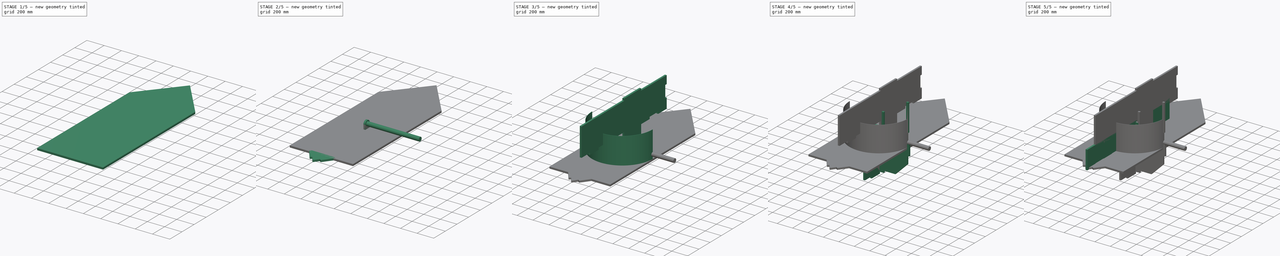
[diagram: build sequence overview — one tinted view per stage of 5, left to right]
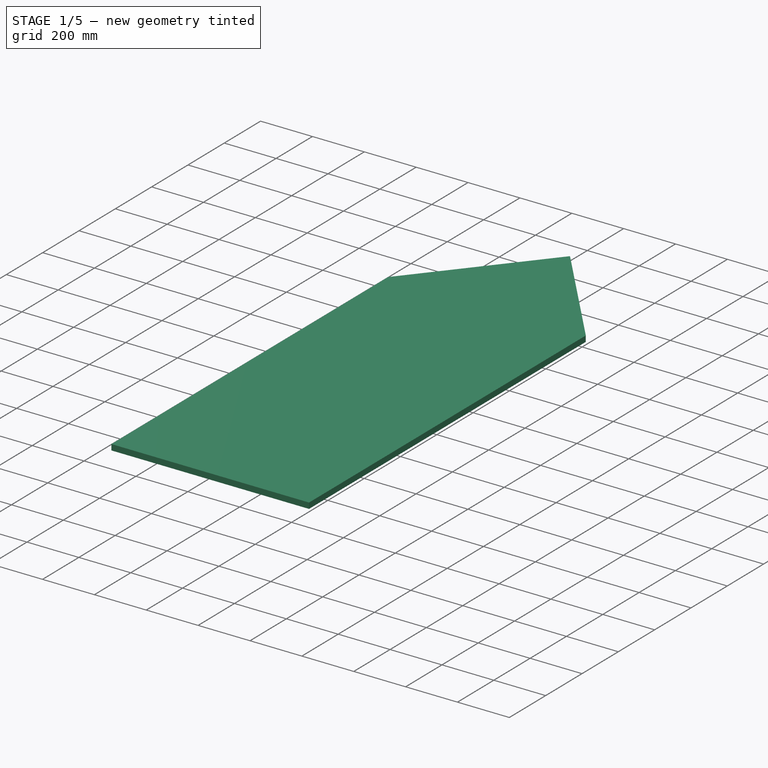
[diagram: stage 1 of 5 — iso view after this stage's code; geometry added in this stage tinted green]
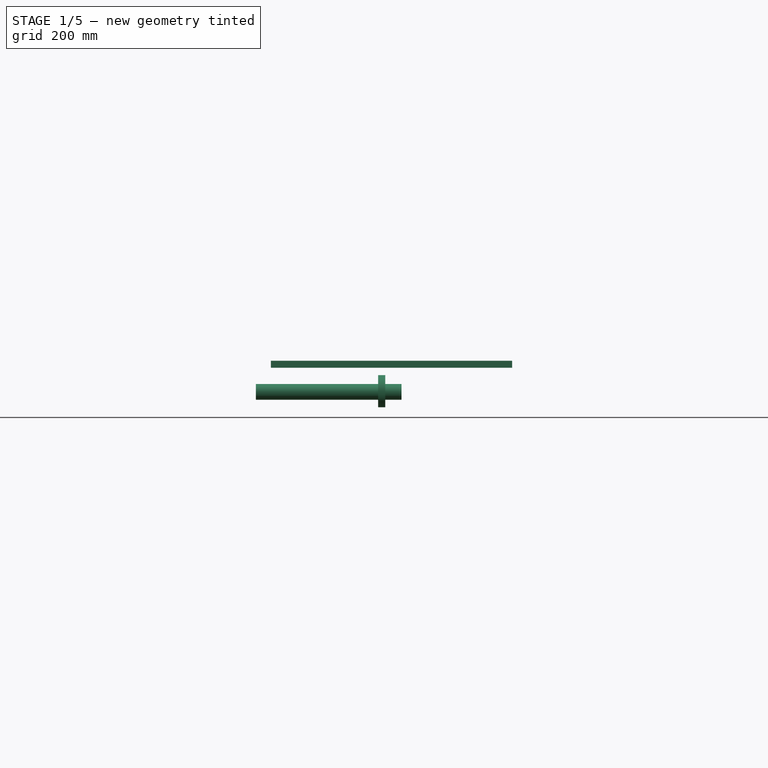
[diagram: stage 1 of 5 — front view after this stage's code; geometry added in this stage tinted green]
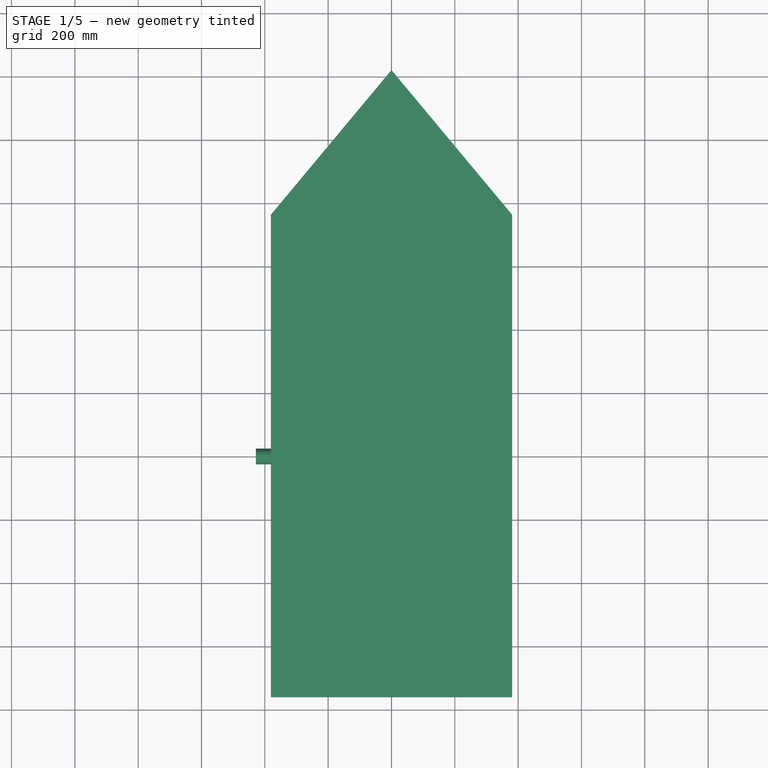
[diagram: stage 1 of 5 — top view after this stage's code; geometry added in this stage tinted green]
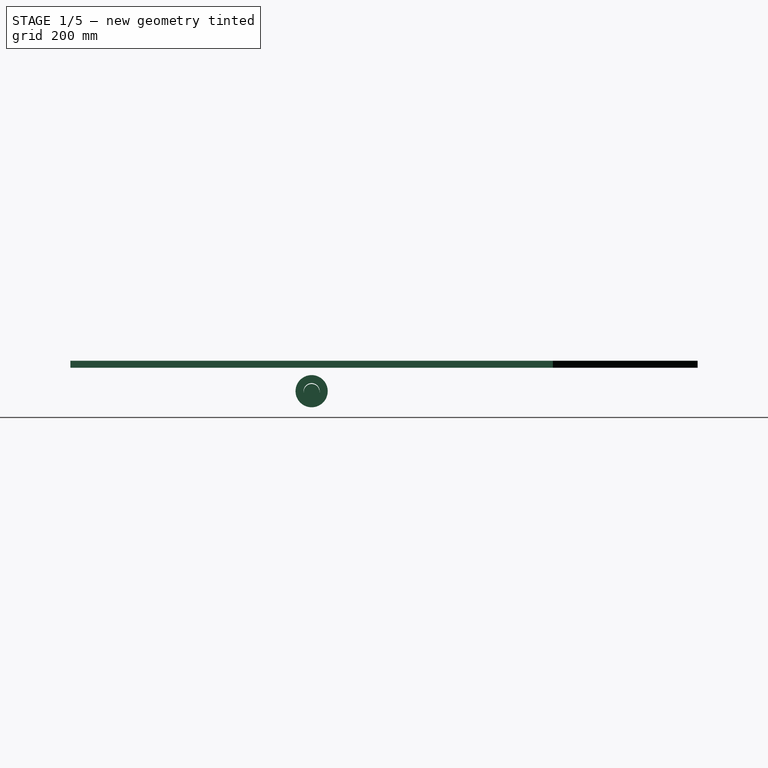
[diagram: stage 1 of 5 — right view after this stage's code; geometry added in this stage tinted green]
FCSTD DOCUMENT  (FreeCAD 0.20R29603 (Git))
Label: cardboardboat
License: All rights reserved
LicenseURL: http://en.wikipedia.org/wiki/All_rights_reserved
objects: Sketcher::SketchObject×20, PartDesign::Pad×16, PartDesign::Body×16, App::Part×6, PartDesign::Pocket×2, Part::Cylinder×2, PartDesign::Plane×1, Part::FeaturePython×1
note: 76 computed .brp shape members not serialized (recipe doc carries the construction recipe); baked Part::Feature solids carry a one-line shape summary decoded from their .brp

FEATURE [Part::Cylinder] Cylinder001  label="TransferShaft"
  Angle = 360
  AttacherType = Attacher::AttachEngine3D
  FirstAngle = 0
  Height = 460
  Placement = pos=(-428.25,0,-76.2) rot=(0,1,0;1.5708rad)
  Radius = 25
  SecondAngle = 0
FEATURE [Sketcher::SketchObject] Sketch018
  FullyConstrained = true
  MapMode = 5
  Support = -> [XY_Plane018]
  sketch-geometry (41):
    g0: Circle CenterX=0 CenterY=0 CenterZ=0 NormalX=0 NormalY=0 NormalZ=1 AngleXU=0 Radius=25.4
    g1: LineSegment StartX=11.1125 StartY=38.1 StartZ=0 EndX=-11.1125 EndY=38.1 EndZ=0
    g2: LineSegment StartX=-11.1125 StartY=38.1 StartZ=0 EndX=-11.1125 EndY=177.8 EndZ=0
    g3: LineSegment StartX=-177.8 StartY=11.1125 StartZ=0 EndX=-38.1 EndY=11.1125 EndZ=0
    g4: LineSegment StartX=-38.1 StartY=11.1125 StartZ=0 EndX=-38.1 EndY=-11.1125 EndZ=0
    g5: LineSegment StartX=-38.1 StartY=-11.1125 StartZ=0 EndX=-177.8 EndY=-11.1125 EndZ=0
    g6: LineSegment StartX=-11.1125 StartY=-177.8 StartZ=0 EndX=-11.1125 EndY=-38.1 EndZ=0
    g7: LineSegment StartX=-11.1125 StartY=-38.1 StartZ=0 EndX=11.1125 EndY=-38.1 EndZ=0
    g8: LineSegment StartX=11.1125 StartY=-38.1 StartZ=0 EndX=11.1125 EndY=-177.8 EndZ=0
    g9: LineSegment StartX=177.8 StartY=-11.1125 StartZ=0 EndX=38.1 EndY=-11.1125 EndZ=0
    g10: LineSegment StartX=38.1 StartY=-11.1125 StartZ=0 EndX=38.1 EndY=11.1125 EndZ=0
    g11: LineSegment StartX=38.1 StartY=11.1125 StartZ=0 EndX=177.8 EndY=11.1125 EndZ=0
    g12: LineSegment StartX=11.1125 StartY=177.8 StartZ=0 EndX=11.1125 EndY=38.1 EndZ=0
    g13: Circle CenterX=-177.8 CenterY=11.1125 CenterZ=0 NormalX=0 NormalY=0 NormalZ=1 AngleXU=0 Radius=1
    g14: Circle CenterX=-13.4704 CenterY=13.4704 CenterZ=0 NormalX=0 NormalY=0 NormalZ=1 AngleXU=0 Radius=1
    g15: Circle CenterX=-11.1125 CenterY=177.8 CenterZ=0 NormalX=0 NormalY=0 NormalZ=1 AngleXU=0 Radius=1
    g16: BSplineCurve PolesCount=3 KnotsCount=2 Degree=2 IsPeriodic=0
    g17: GeomPoint X=-177.8 Y=11.1125 Z=0
    g18: GeomPoint X=-11.1125 Y=177.8 Z=0
    g19: Circle CenterX=11.1125 CenterY=177.8 CenterZ=0 NormalX=0 NormalY=0 NormalZ=1 AngleXU=0 Radius=1
    g20: Circle CenterX=13.4704 CenterY=13.4704 CenterZ=0 NormalX=0 NormalY=0 NormalZ=1 AngleXU=0 Radius=1
    g21: Circle CenterX=177.8 CenterY=11.1125 CenterZ=0 NormalX=0 NormalY=0 NormalZ=1 AngleXU=0 Radius=1
    g22: BSplineCurve PolesCount=3 KnotsCount=2 Degree=2 IsPeriodic=0
    g23: GeomPoint X=11.1125 Y=177.8 Z=0
    g24: GeomPoint X=177.8 Y=11.1125 Z=0
    g25: Circle CenterX=177.8 CenterY=-11.1125 CenterZ=0 NormalX=0 NormalY=0 NormalZ=1 AngleXU=0 Radius=1
    g26: Circle CenterX=13.4704 CenterY=-13.4704 CenterZ=0 NormalX=0 NormalY=0 NormalZ=1 AngleXU=0 Radius=1
    g27: Circle CenterX=11.1125 CenterY=-177.8 CenterZ=0 NormalX=0 NormalY=0 NormalZ=1 AngleXU=0 Radius=1
    g28: BSplineCurve PolesCount=3 KnotsCount=2 Degree=2 IsPeriodic=0
    g29: GeomPoint X=177.8 Y=-11.1125 Z=0
    g30: GeomPoint X=11.1125 Y=-177.8 Z=0
    g31: Circle CenterX=-11.1125 CenterY=-177.8 CenterZ=0 NormalX=0 NormalY=0 NormalZ=1 AngleXU=0 Radius=1
    g32: Circle CenterX=-13.4704 CenterY=-13.4704 CenterZ=0 NormalX=0 NormalY=0 NormalZ=1 AngleXU=0 Radius=1
    g33: Circle CenterX=-177.8 CenterY=-11.1125 CenterZ=0 NormalX=0 NormalY=0 NormalZ=1 AngleXU=0 Radius=1
    g34: BSplineCurve PolesCount=3 KnotsCount=2 Degree=2 IsPeriodic=0
    g35: GeomPoint X=-11.1125 Y=-177.8 Z=0
    g36: GeomPoint X=-177.8 Y=-11.1125 Z=0
    g37: LineSegment StartX=13.4704 StartY=-13.4704 StartZ=0 EndX=0 EndY=0 EndZ=0
    g38: LineSegment StartX=0 StartY=0 StartZ=0 EndX=13.4704 EndY=13.4704 EndZ=0
    g39: LineSegment StartX=0 StartY=0 StartZ=0 EndX=-13.4704 EndY=13.4704 EndZ=0
    g40: LineSegment StartX=0 StartY=0 StartZ=0 EndX=-13.4704 EndY=-13.4704 EndZ=0
  constraints (92):
    c: Coincident(g0,g-1)
    c: Diameter(g0) = 50.8
    c: Coincident(g1,g2)
    c: Vertical(g2)
    c: Horizontal(g3)
    c: Coincident(g3,g4)
    c: Coincident(g4,g5)
    c: Horizontal(g5)
    c: Vertical(g6)
    c: Coincident(g6,g7)
    c: Coincident(g7,g8)
    c: Vertical(g8)
    c: Horizontal(g9)
    c: Coincident(g9,g10)
    c: Coincident(g10,g11)
    c: Horizontal(g11)
    c: Coincident(g12,g1)
    c: Vertical(g12)
    c: Equal(g1,g4)
    c: Symmetric(g10,g9,g-1)
    c: Symmetric(g3,g4,g-1)
    c: Symmetric(g1,g1,g-2)
    c: Symmetric(g6,g7,g-2)
    c: Equal(g8,g6)
    c: Equal(g6,g5)
    c: Equal(g5,g3)
    c: Equal(g2,g3)
    c: Equal(g3,g12)
    c: Equal(g12,g11)
    c: Equal(g11,g9)
    c: Symmetric(g10,g3,g-2)
    c: Symmetric(g1,g7,g-1)
    c: DistanceX(g1,g1) = 22.225
    c: DistanceX(g4,g9) = 76.2
    c: DistanceY(g7,g1) = 76.2
    c: DistanceX(g11,g11) = 139.7
    c: Weight(g13) = 1
    c: Coincident(g16,g3)
    c: Equal(g13,g14)
    c: Equal(g13,g15)
    c: Coincident(g16,g2)
    c: InternalAlignment(g13,g16)
    c: InternalAlignment(g14,g16)
    c: InternalAlignment(g15,g16)
    c: InternalAlignment(g17,g16)
    c: InternalAlignment(g18,g16)
    c: Weight(g19) = 1
    c: Coincident(g22,g12)
    c: Equal(g19,g20)
    c: Equal(g19,g21)
    c: Coincident(g22,g11)
    c: InternalAlignment(g19,g22)
    c: InternalAlignment(g20,g22)
    c: InternalAlignment(g21,g22)
    c: InternalAlignment(g23,g22)
    c: InternalAlignment(g24,g22)
    c: Weight(g25) = 1
    c: Coincident(g28,g9)
    c: Equal(g25,g26)
    c: Equal(g25,g27)
    c: Coincident(g28,g8)
    c: InternalAlignment(g25,g28)
    c: InternalAlignment(g26,g28)
    c: InternalAlignment(g27,g28)
    c: InternalAlignment(g29,g28)
    c: InternalAlignment(g30,g28)
    c: Weight(g31) = 1
    c: Coincident(g34,g6)
    c: Equal(g31,g32)
    c: Equal(g31,g33)
    c: Coincident(g34,g5)
    c: InternalAlignment(g31,g34)
    c: InternalAlignment(g32,g34)
    c: InternalAlignment(g33,g34)
    c: InternalAlignment(g35,g34)
    c: InternalAlignment(g36,g34)
    c: Coincident(g37,g26)
    c: Coincident(g37,g0)
    c: Coincident(g38,g0)
    c: Coincident(g38,g20)
    c: Coincident(g39,g0)
    c: Coincident(g39,g14)
    c: Coincident(g40,g0)
    c: Coincident(g40,g32)
    c: Angle(g40,g37) = 1.5708
    c: Angle(g39,g40) = 1.5708
    c: Angle(g38,g39) = 1.5708
    c: Equal(g39,g38)
    c: Equal(g37,g38)
    c: Equal(g37,g40)
    c: Angle(g37,g-1) = 0.785398
    c: Distance(g38) = 19.05
FEATURE [PartDesign::Pad] Pad014
  Direction = (0,0,1)
  Length = 22.225
  Length2 = 10
  Profile = -> Sketch018
  ReferenceAxis = -> Sketch018 [N_Axis]
  Type = 0
FEATURE [PartDesign::Body] Body014  label="BladeEmit"
  Group = -> [Sketch018,Pad014]
  Origin = -> Origin018
  Placement = pos=(-165,0,-77) rot=(0,1,0;1.5708rad)
  Tip = -> Pad014
FEATURE [Part::FeaturePython] Tube  label="Washer"  # WARN: FeaturePython — macro-defined, semantics opaque (R4)
  AttacherType = Attacher::AttachEngine3D
  Height = 22.225
  InnerRadius = 25.4
  OuterRadius = 50.8
  Placement = pos=(-42,0,-74) rot=(0,1,0;1.5708rad)
FEATURE [App::Part] Part003  label="mech"
  Group = -> [Body013,Cylinder,Cylinder001,Body014,Tube]
  Origin = -> Origin016
  Placement = pos=(-328,0,438) rot=(0,0,1;0rad)
FEATURE [Sketcher::SketchObject] Sketch019
  FullyConstrained = true
  MapMode = 5
  Support = -> [XY_Plane020]
  sketch-geometry (5):
    g0: LineSegment StartX=-381 StartY=762 StartZ=0 EndX=-381 EndY=-762 EndZ=0
    g1: LineSegment StartX=-381 StartY=-762 StartZ=0 EndX=381 EndY=-762 EndZ=0
    g2: LineSegment StartX=381 StartY=-762 StartZ=0 EndX=381 EndY=762 EndZ=0
    g3: LineSegment StartX=381 StartY=762 StartZ=0 EndX=5.68e-14 EndY=1219.2 EndZ=0
    g4: LineSegment StartX=5.68e-14 StartY=1219.2 StartZ=0 EndX=-381 EndY=762 EndZ=0
  constraints (13):
    c: Vertical(g0)
    c: Coincident(g0,g1)
    c: Horizontal(g1)
    c: Coincident(g1,g2)
    c: Coincident(g2,g3)
    c: Coincident(g3,g4)
    c: Coincident(g4,g0)
    c: Symmetric(g0,g2,g-2)
    c: Symmetric(g2,g1,g-1)
    c: DistanceX(g1,g1) = 762
    c: DistanceY(g2,g2) = 1524
    c: PointOnObject(g3,g-2)
    c: DistanceY(g-1,g3) = 1219.2
FEATURE [PartDesign::Pad] Pad015
  Direction = (0,0,1)
  Length = 22.225
  Length2 = 10
  Profile = -> Sketch019
  ReferenceAxis = -> Sketch019 [N_Axis]
  Type = 0
FEATURE [PartDesign::Body] Body015  label="sitplate"
  Group = -> [Sketch019,Pad015]
  Origin = -> Origin020
  Placement = pos=(0,0,166) rot=(0,0,1;3.14159rad)
  Tip = -> Pad015
FEATURE [App::Part] Part004  label="int"
  Group = -> [Body015]
  Origin = -> Origin019
  Placement = pos=(0,0,934) rot=(0,0,1;0rad)
FEATURE [App::Part] Part002  label="all"
  Group = -> [Part001,Part,Part003,Part004]
  Origin = -> Origin014
FEATURE [App::Part] Part005
  Origin = -> Origin021
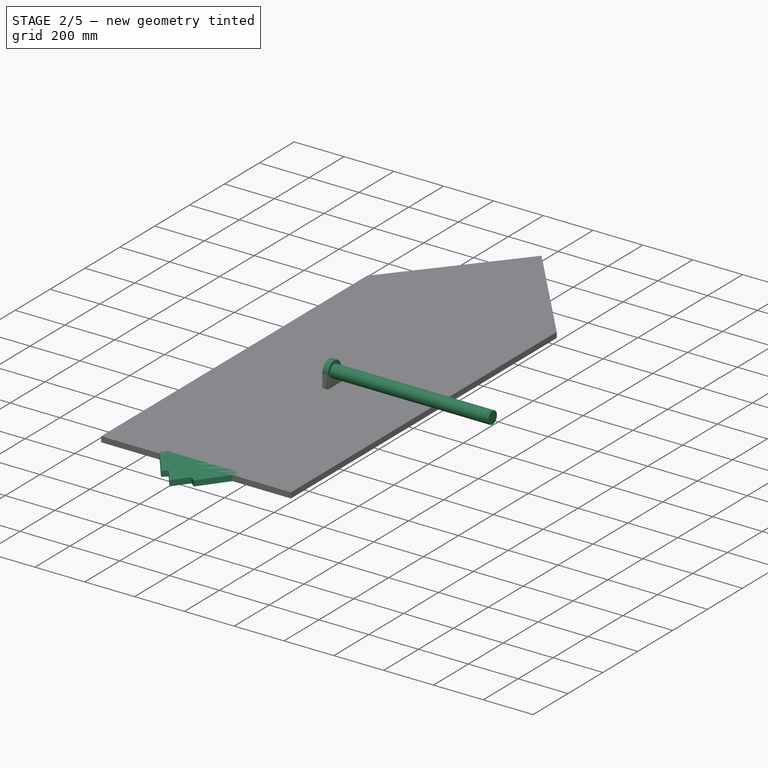
[diagram: stage 2 of 5 — iso view after this stage's code; geometry added in this stage tinted green]
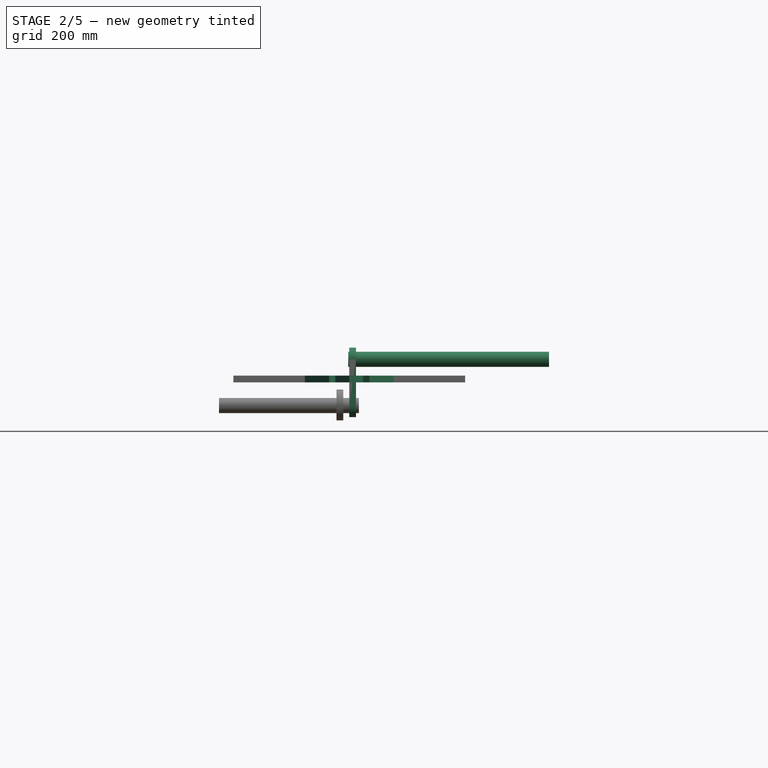
[diagram: stage 2 of 5 — front view after this stage's code; geometry added in this stage tinted green]
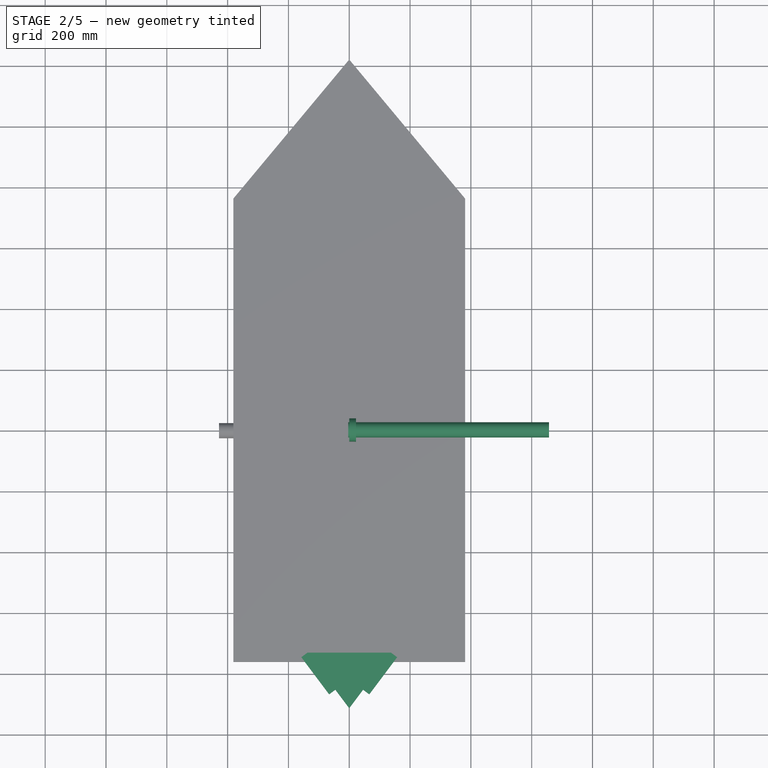
[diagram: stage 2 of 5 — top view after this stage's code; geometry added in this stage tinted green]
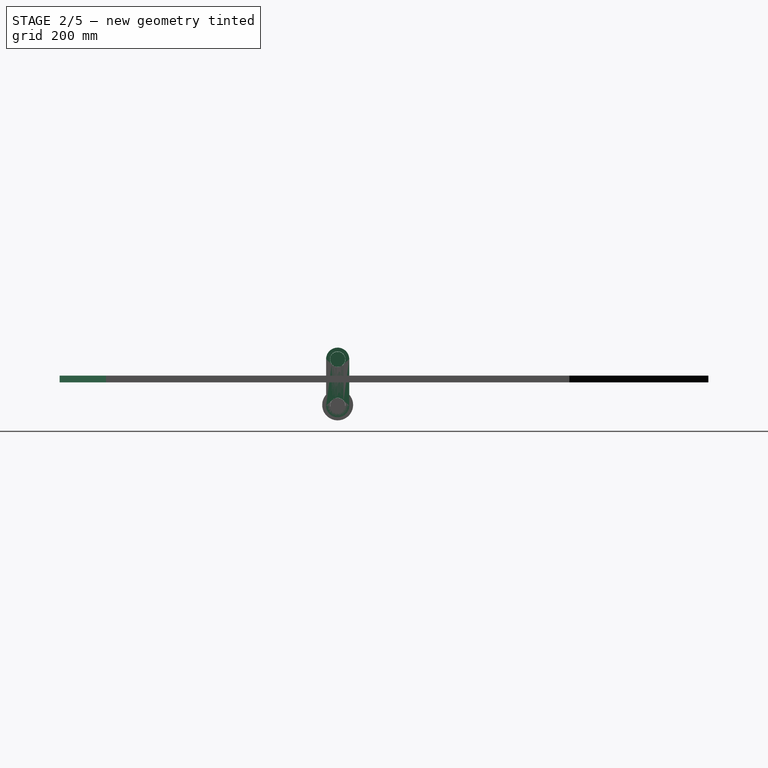
[diagram: stage 2 of 5 — right view after this stage's code; geometry added in this stage tinted green]
FEATURE [Sketcher::SketchObject] Sketch
  FullyConstrained = true
  MapMode = 5
  Support = -> [XY_Plane]
  sketch-geometry (55):
    g0: LineSegment StartX=-228.6 StartY=914.4 StartZ=0 EndX=-228.6 EndY=762 EndZ=0
    g1: LineSegment StartX=-254 StartY=762 StartZ=0 EndX=-254 EndY=609.6 EndZ=0
    g2: LineSegment StartX=-254 StartY=609.6 StartZ=0 EndX=-228.6 EndY=609.6 EndZ=0
    g3: LineSegment StartX=-228.6 StartY=609.6 StartZ=0 EndX=-228.6 EndY=457.2 EndZ=0
    g4: LineSegment StartX=-228.6 StartY=457.2 StartZ=0 EndX=-254 EndY=457.2 EndZ=0
    g5: LineSegment StartX=-254 StartY=457.2 StartZ=0 EndX=-254 EndY=304.8 EndZ=0
    g6: LineSegment StartX=-254 StartY=304.8 StartZ=0 EndX=-228.6 EndY=304.8 EndZ=0
    g7: LineSegment StartX=-228.6 StartY=304.8 StartZ=0 EndX=-228.6 EndY=152.4 EndZ=0
    g8: LineSegment StartX=-228.6 StartY=152.4 StartZ=0 EndX=-254 EndY=152.4 EndZ=0
    g9: LineSegment StartX=-254 StartY=152.4 StartZ=0 EndX=-254 EndY=-2.84e-14 EndZ=0
    g10: LineSegment StartX=-254 StartY=-2.84e-14 StartZ=0 EndX=-228.6 EndY=-2.84e-14 EndZ=0
    g11: LineSegment StartX=-228.6 StartY=-2.84e-14 StartZ=0 EndX=-228.6 EndY=-152.4 EndZ=0
    g12: LineSegment StartX=-228.6 StartY=-152.4 StartZ=0 EndX=-254 EndY=-152.4 EndZ=0
    g13: LineSegment StartX=-254 StartY=-152.4 StartZ=0 EndX=-254 EndY=-304.8 EndZ=0
    g14: LineSegment StartX=-254 StartY=-304.8 StartZ=0 EndX=-228.6 EndY=-304.8 EndZ=0
    g15: LineSegment StartX=-228.6 StartY=-304.8 StartZ=0 EndX=-228.6 EndY=-457.2 EndZ=0
    g16: LineSegment StartX=-228.6 StartY=-457.2 StartZ=0 EndX=-254 EndY=-457.2 EndZ=0
    g17: LineSegment StartX=-254 StartY=-457.2 StartZ=0 EndX=-254 EndY=-609.6 EndZ=0
    g18: LineSegment StartX=254 StartY=-609.6 StartZ=0 EndX=254 EndY=-457.2 EndZ=0
    g19: LineSegment StartX=254 StartY=-457.2 StartZ=0 EndX=228.6 EndY=-457.2 EndZ=0
    g20: LineSegment StartX=228.6 StartY=-457.2 StartZ=0 EndX=228.6 EndY=-304.8 EndZ=0
    g21: LineSegment StartX=228.6 StartY=-304.8 StartZ=0 EndX=254 EndY=-304.8 EndZ=0
    g22: LineSegment StartX=254 StartY=-304.8 StartZ=0 EndX=254 EndY=-152.4 EndZ=0
    g23: LineSegment StartX=254 StartY=-152.4 StartZ=0 EndX=228.6 EndY=-152.4 EndZ=0
    g24: LineSegment StartX=228.6 StartY=-152.4 StartZ=0 EndX=228.6 EndY=-2.84e-14 EndZ=0
    g25: LineSegment StartX=228.6 StartY=-2.84e-14 StartZ=0 EndX=254 EndY=-2.84e-14 EndZ=0
    g26: LineSegment StartX=254 StartY=-2.84e-14 StartZ=0 EndX=254 EndY=152.4 EndZ=0
    g27: LineSegment StartX=254 StartY=152.4 StartZ=0 EndX=228.6 EndY=152.4 EndZ=0
    g28: LineSegment StartX=228.6 StartY=152.4 StartZ=0 EndX=228.6 EndY=304.8 EndZ=0
    g29: LineSegment StartX=228.6 StartY=304.8 StartZ=0 EndX=254 EndY=304.8 EndZ=0
    g30: LineSegment StartX=254 StartY=304.8 StartZ=0 EndX=254 EndY=457.2 EndZ=0
    g31: LineSegment StartX=254 StartY=457.2 StartZ=0 EndX=228.6 EndY=457.2 EndZ=0
    g32: LineSegment StartX=228.6 StartY=457.2 StartZ=0 EndX=228.6 EndY=609.6 EndZ=0
    g33: LineSegment StartX=228.6 StartY=609.6 StartZ=0 EndX=254 EndY=609.6 EndZ=0
    g34: LineSegment StartX=254 StartY=609.6 StartZ=0 EndX=254 EndY=762 EndZ=0
    g35: LineSegment StartX=254 StartY=762 StartZ=0 EndX=228.6 EndY=762 EndZ=0
    g36: LineSegment StartX=228.6 StartY=762 StartZ=0 EndX=228.6 EndY=914.4 EndZ=0
    g37: LineSegment StartX=228.6 StartY=914.4 StartZ=0 EndX=0 EndY=914.4 EndZ=0
    g38: LineSegment StartX=0 StartY=914.4 StartZ=0 EndX=-228.6 EndY=914.4 EndZ=0
    g39: LineSegment StartX=254 StartY=-609.6 StartZ=0 EndX=228.6 EndY=-609.6 EndZ=0
    g40: LineSegment StartX=-254 StartY=-609.6 StartZ=0 EndX=-228.6 EndY=-609.6 EndZ=0
    g41: LineSegment StartX=-228.6 StartY=-609.6 StartZ=0 EndX=0 EndY=-609.6 EndZ=0
    g42: LineSegment StartX=0 StartY=-609.6 StartZ=0 EndX=228.6 EndY=-609.6 EndZ=0
    g43: LineSegment StartX=0 StartY=-609.6 StartZ=0 EndX=7.1e-15 EndY=-914.4 EndZ=0
    g44: LineSegment StartX=228.6 StartY=-609.6 StartZ=0 EndX=137.16 EndY=-731.52 EndZ=0
    g45: LineSegment StartX=137.16 StartY=-731.52 StartZ=0 EndX=157.48 EndY=-746.76 EndZ=0
    g46: LineSegment StartX=157.48 StartY=-746.76 StartZ=0 EndX=66.04 EndY=-868.68 EndZ=0
    g47: LineSegment StartX=66.04 StartY=-868.68 StartZ=0 EndX=45.72 EndY=-853.44 EndZ=0
    g48: LineSegment StartX=45.72 StartY=-853.44 StartZ=0 EndX=7.1e-15 EndY=-914.4 EndZ=0
    g49: LineSegment StartX=-228.6 StartY=-609.6 StartZ=0 EndX=-137.16 EndY=-731.52 EndZ=0
    g50: LineSegment StartX=-137.16 StartY=-731.52 StartZ=0 EndX=-157.48 EndY=-746.76 EndZ=0
    g51: LineSegment StartX=-157.48 StartY=-746.76 StartZ=0 EndX=-66.04 EndY=-868.68 EndZ=0
    g52: LineSegment StartX=-66.04 StartY=-868.68 StartZ=0 EndX=-45.72 EndY=-853.44 EndZ=0
    g53: LineSegment StartX=-45.72 StartY=-853.44 StartZ=0 EndX=7.1e-15 EndY=-914.4 EndZ=0
    g54: LineSegment StartX=-254 StartY=762 StartZ=0 EndX=-228.6 EndY=762 EndZ=0
  constraints (162):
    c: Vertical(g0)
    c: Vertical(g1)
    c: Coincident(g1,g2)
    c: Horizontal(g2)
    c: Coincident(g2,g3)
    c: Coincident(g3,g4)
    c: Horizontal(g4)
    c: Coincident(g4,g5)
    c: Vertical(g5)
    c: Coincident(g5,g6)
    c: Horizontal(g6)
    c: Coincident(g6,g7)
    c: Vertical(g7)
    c: Coincident(g7,g8)
    c: Horizontal(g8)
    c: Coincident(g8,g9)
    c: Vertical(g9)
    c: Coincident(g9,g10)
    c: Horizontal(g10)
    c: Coincident(g10,g11)
    c: Vertical(g11)
    c: Coincident(g11,g12)
    c: Horizontal(g12)
    c: Coincident(g12,g13)
    c: Vertical(g13)
    c: Coincident(g13,g14)
    c: Coincident(g14,g15)
    c: Vertical(g15)
    c: Coincident(g15,g16)
    c: Horizontal(g16)
    c: Coincident(g16,g17)
    c: Vertical(g17)
    c: Horizontal(g14)
    c: Vertical(g3)
    c: Equal(g0,g1)
    c: Equal(g1,g3)
    c: Equal(g3,g5)
    c: Equal(g5,g7)
    c: Equal(g7,g9)
    c: Equal(g9,g11)
    c: Equal(g13,g11)
    c: Equal(g13,g15)
    c: Equal(g15,g17)
    c: Equal(g16,g14)
    c: Equal(g14,g12)
    c: Equal(g10,g12)
    c: Equal(g8,g10)
    c: Equal(g6,g8)
    c: Equal(g4,g6)
    c: Equal(g2,g4)
    c: Vertical(g18)
    c: Coincident(g18,g19)
    c: Coincident(g19,g20)
    c: Vertical(g20)
    c: Coincident(g20,g21)
    c: Horizontal(g21)
    c: Coincident(g21,g22)
    c: Coincident(g22,g23)
    c: Horizontal(g23)
    c: Coincident(g23,g24)
    c: Coincident(g24,g25)
    c: Coincident(g25,g26)
    c: Vertical(g26)
    c: Coincident(g26,g27)
    c: Coincident(g27,g28)
    c: Coincident(g28,g29)
    c: Horizontal(g29)
    c: Coincident(g29,g30)
    c: Coincident(g30,g31)
    c: Coincident(g31,g32)
    c: Coincident(g32,g33)
    c: Horizontal(g33)
    c: Coincident(g33,g34)
    c: Vertical(g34)
    c: Coincident(g34,g35)
    c: Coincident(g35,g36)
    c: Vertical(g36)
    c: Vertical(g32)
    c: Vertical(g30)
    c: Vertical(g24)
    c: Vertical(g22)
    c: Horizontal(g19)
    c: Horizontal(g25)
    c: Horizontal(g27)
    c: Horizontal(g31)
    c: Horizontal(g35)
    c: Equal(g35,g33)
    c: Equal(g31,g33)
    c: Equal(g31,g29)
    c: Vertical(g28)
    c: Equal(g27,g29)
    c: Equal(g27,g25)
    c: Equal(g25,g23)
    c: Equal(g23,g21)
    c: Equal(g20,g18)
    c: Equal(g20,g22)
    c: Equal(g22,g24)
    c: Equal(g24,g26)
    c: Equal(g26,g28)
    c: Equal(g30,g28)
    c: Equal(g30,g32)
    c: Equal(g32,g34)
    c: Equal(g34,g36)
    c: Symmetric(g0,g36,g-2)
    c: Equal(g36,g0)
    c: Coincident(g37,g36)
    c: Horizontal(g37)
    c: Coincident(g38,g37)
    c: Coincident(g38,g0)
    c: Equal(g21,g19)
    c: Coincident(g39,g18)
    c: Horizontal(g39)
    c: Coincident(g40,g17)
    c: Horizontal(g40)
    c: Equal(g40,g16)
    c: Equal(g39,g19)
    c: DistanceY(g39,g36) = 1524
    c: DistanceX(g35,g35) = 25.4
    c: Coincident(g41,g40)
    c: PointOnObject(g41,g-2)
    c: Horizontal(g41)
    c: Coincident(g42,g41)
    c: Coincident(g42,g39)
    c: Coincident(g43,g41)
    c: PointOnObject(g43,g-2)
    c: DistanceY(g43,g43) = 304.8
    c: Coincident(g39,g44)
    c: Coincident(g44,g45)
    c: Coincident(g45,g46)
    c: Coincident(g46,g47)
    c: Coincident(g47,g48)
    c: Coincident(g48,g43)
    c: Equal(g44,g46)
    c: Parallel(g44,g46)
    c: Parallel(g44,g48)
    c: Angle(g46,g47) = 1.5708
    c: Angle(g45,g46) = 1.5708
    c: Equal(g47,g45)
    c: Distance(g45) = 25.4
    c: Distance(g44) = 152.4
    c: Coincident(g40,g49)
    c: Coincident(g49,g50)
    c: Coincident(g50,g51)
    c: Coincident(g51,g52)
    c: Coincident(g52,g53)
    c: Coincident(g53,g48)
    c: Parallel(g53,g51)
    c: Parallel(g51,g49)
    c: Angle(g52,g51) = 1.5708
    c: Angle(g51,g50) = 1.5708
    c: Equal(g49,g51)
    c: Equal(g50,g52)
    c: Distance(g50) = 25.4
    c: Distance(g49) = 152.4
    c: DistanceX(g0,g36) = 457.2
    c: Coincident(g54,g1)
    c: Coincident(g54,g0)
    c: Horizontal(g54)
    c: Equal(g19,g16)
    c: PointOnObject(g37,g-2)
    c: DistanceX(g54,g54) = 25.4
    c: DistanceY(g-1,g37) = 914.4
FEATURE [PartDesign::Pad] Pad
  Direction = (0,0,1)
  Length = 22.225
  Length2 = 10
  Profile = -> Sketch
  ReferenceAxis = -> Sketch [N_Axis]
  Type = 0
FEATURE [PartDesign::Body] Body  label="Botton"
  Group = -> [Sketch,Pad,Sketch015,Pocket001]
  Origin = -> Origin
  Placement = pos=(0,-147,0) rot=(0,0,1;0rad)
  Tip = -> Pocket001
FEATURE [Sketcher::SketchObject] Sketch016
  FullyConstrained = true
  MapMode = 5
  Support = -> [XY_Plane015]
  sketch-geometry (4):
    g0: LineSegment StartX=-114.3 StartY=22.225 StartZ=0 EndX=114.3 EndY=22.225 EndZ=0
    g1: LineSegment StartX=114.3 StartY=22.225 StartZ=0 EndX=114.3 EndY=-22.225 EndZ=0
    g2: LineSegment StartX=114.3 StartY=-22.225 StartZ=0 EndX=-114.3 EndY=-22.225 EndZ=0
    g3: LineSegment StartX=-114.3 StartY=-22.225 StartZ=0 EndX=-114.3 EndY=22.225 EndZ=0
  constraints (10):
    c: Coincident(g0,g1)
    c: Coincident(g1,g2)
    c: Coincident(g2,g3)
    c: Coincident(g3,g0)
    c: Horizontal(g2)
    c: Vertical(g1)
    c: Symmetric(g0,g2,g-1)
    c: Symmetric(g0,g0,g-2)
    c: DistanceX(g0,g0) = 228.6
    c: DistanceY(g1,g1) = 44.45
FEATURE [PartDesign::Pad] Pad012
  Direction = (0,0,1)
  Length = 22.225
  Length2 = 10
  Profile = -> Sketch016
  ReferenceAxis = -> Sketch016 [N_Axis]
  Type = 0
FEATURE [PartDesign::Body] Body012  label="Vert2"
  Group = -> [Sketch016,Pad012]
  Origin = -> Origin015
  Placement = pos=(384,138,215) rot=(0.57735,-0.57735,-0.57735;2.0944rad)
  Tip = -> Pad012
FEATURE [App::Part] Part  label="main"
  Group = -> [Body008,Body007,Body006,Body004,Body005,Body003,Body002,Body001,Body,Body012]
  Origin = -> Origin010
FEATURE [Sketcher::SketchObject] Sketch017
  FullyConstrained = true
  MapMode = 5
  Placement = pos=(0,0,0) rot=(0.57735,0.57735,0.57735;2.0944rad)
  Support = -> [YZ_Plane017]
  sketch-geometry (6):
    g0: ArcOfCircle CenterX=0 CenterY=76.2 CenterZ=0 NormalX=0 NormalY=0 NormalZ=1 AngleXU=0 Radius=38.1 StartAngle=1e-16 EndAngle=3.14159
    g1: ArcOfCircle CenterX=0 CenterY=-76.2 CenterZ=0 NormalX=0 NormalY=0 NormalZ=1 AngleXU=0 Radius=38.1 StartAngle=3.14159 EndAngle=6.28319
    g2: LineSegment StartX=-38.1 StartY=76.2 StartZ=0 EndX=-38.1 EndY=-76.2 EndZ=0
    g3: LineSegment StartX=38.1 StartY=-76.2 StartZ=0 EndX=38.1 EndY=76.2 EndZ=0
    g4: Circle CenterX=0 CenterY=76.2 CenterZ=0 NormalX=0 NormalY=0 NormalZ=1 AngleXU=0 Radius=25.4
    g5: Circle CenterX=0 CenterY=-76.2 CenterZ=0 NormalX=0 NormalY=0 NormalZ=1 AngleXU=0 Radius=25.4
  constraints (13):
    c: Tangent(g0,g2) = -1.5708
    c: Tangent(g2,g1) = -1.5708
    c: Tangent(g1,g3) = -1.5708
    c: Tangent(g3,g0) = -1.5708
    c: Equal(g0,g1)
    c: Coincident(g4,g0)
    c: Coincident(g5,g1)
    c: Equal(g4,g5)
    c: Diameter(g4) = 50.8
    c: DistanceY(g1,g0) = 152.4
    c: DistanceX(g0,g0) = 38.1
    c: Symmetric(g0,g1,g-1)
    c: PointOnObject(g0,g-2)
FEATURE [PartDesign::Pad] Pad013
  Direction = (1,-2e-16,3e-16)
  Length = 22.22
  Length2 = 10
  Placement = pos=(0,0,0) rot=(0.57735,0.57735,0.57735;2.0944rad)
  Profile = -> Sketch017
  ReferenceAxis = -> Sketch017 [N_Axis]
  Type = 0
FEATURE [PartDesign::Body] Body013  label="Coupler"
  Group = -> [Sketch017,Pad013]
  Origin = -> Origin017
  Tip = -> Pad013
FEATURE [Part::Cylinder] Cylinder  label="MainShaft"
  Angle = 360
  AttacherType = Attacher::AttachEngine3D
  FirstAngle = 0
  Height = 660
  Placement = pos=(-3.07,0,76) rot=(0,1,0;1.5708rad)
  Radius = 25
  SecondAngle = 0
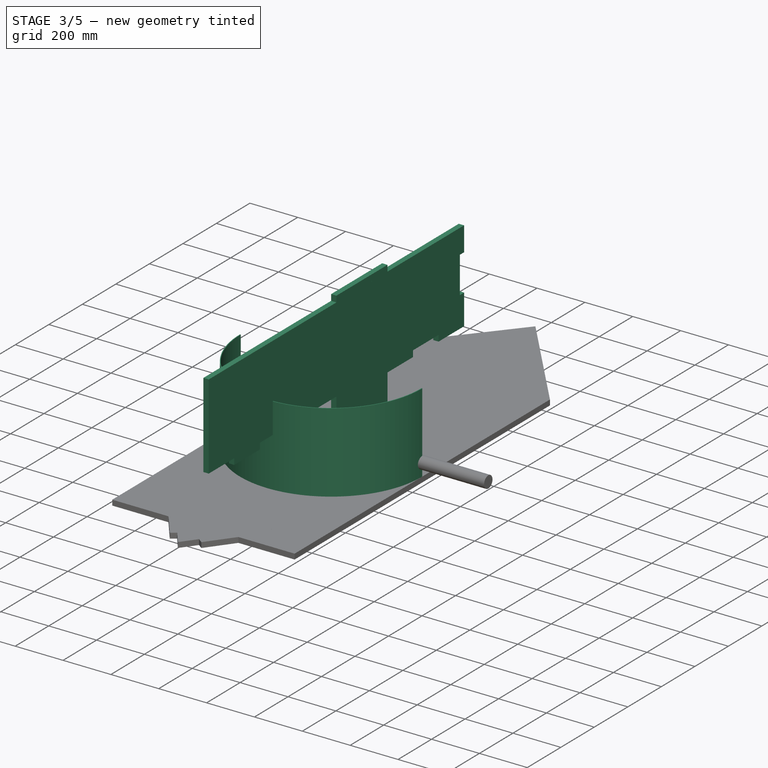
[diagram: stage 3 of 5 — iso view after this stage's code; geometry added in this stage tinted green]
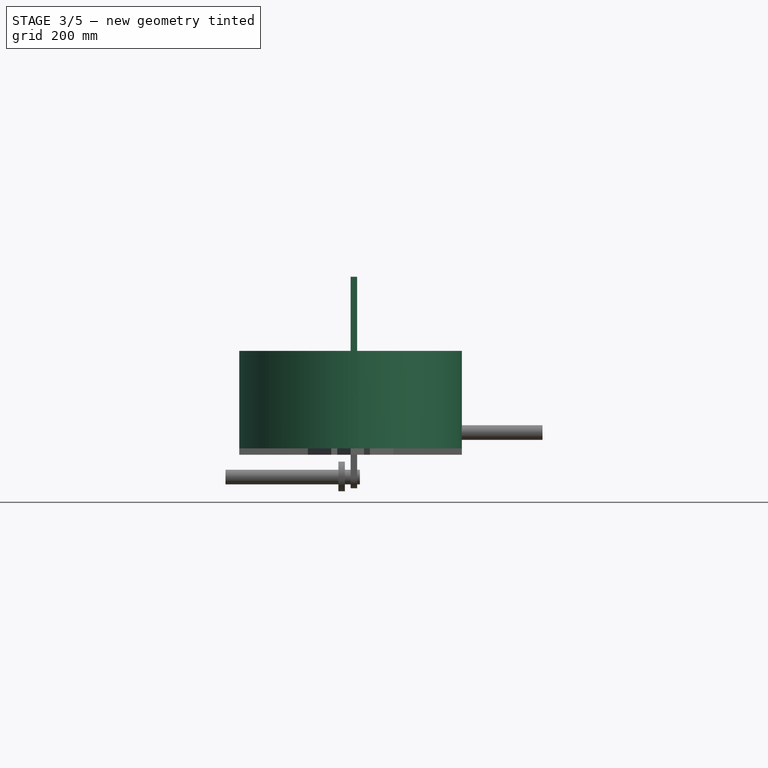
[diagram: stage 3 of 5 — front view after this stage's code; geometry added in this stage tinted green]
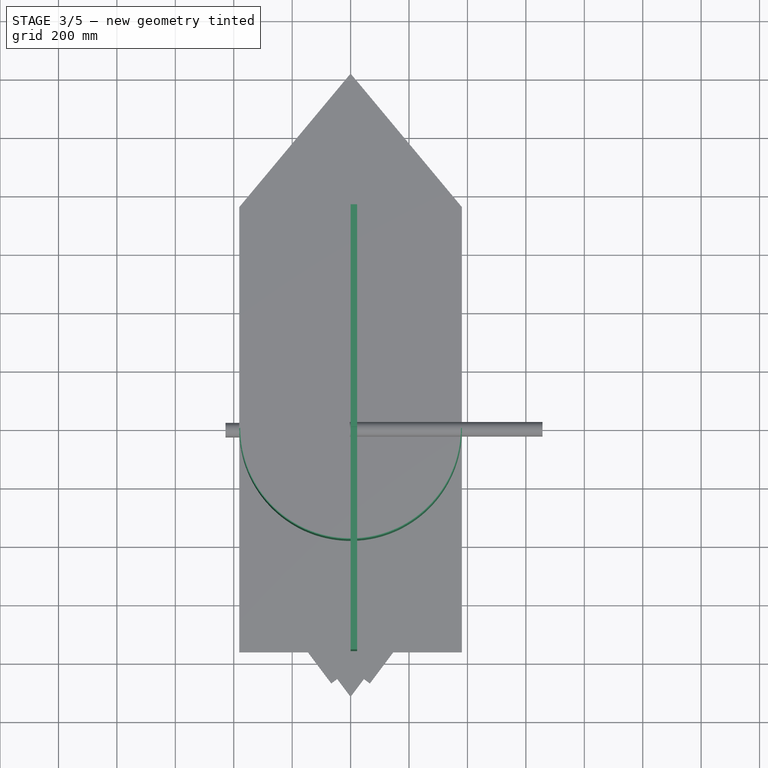
[diagram: stage 3 of 5 — top view after this stage's code; geometry added in this stage tinted green]
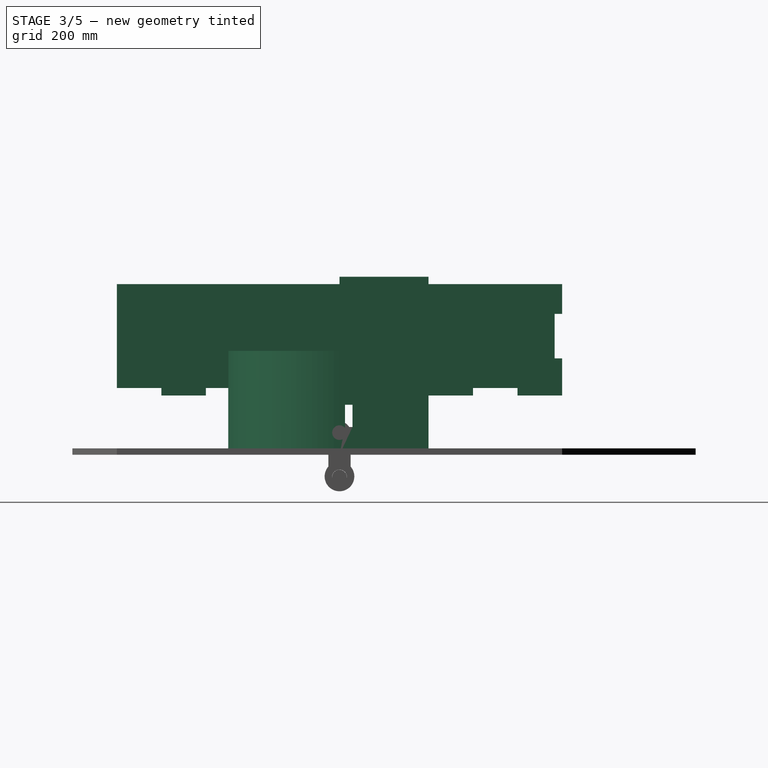
[diagram: stage 3 of 5 — right view after this stage's code; geometry added in this stage tinted green]
FEATURE [Sketcher::SketchObject] Sketch005
  FullyConstrained = true
  MapMode = 5
  Placement = pos=(0,0,0) rot=(0.57735,0.57735,0.57735;2.0944rad)
  Support = -> [YZ_Plane005]
  sketch-geometry (22):
    g0: LineSegment StartX=-762 StartY=228.6 StartZ=0 EndX=-609.6 EndY=228.6 EndZ=0
    g1: LineSegment StartX=-609.6 StartY=228.6 StartZ=0 EndX=-609.6 EndY=203.2 EndZ=0
    g2: LineSegment StartX=-609.6 StartY=203.2 StartZ=0 EndX=-457.2 EndY=203.2 EndZ=0
    g3: LineSegment StartX=-457.2 StartY=203.2 StartZ=0 EndX=-457.2 EndY=228.6 EndZ=0
    g4: LineSegment StartX=-457.2 StartY=228.6 StartZ=0 EndX=-304.8 EndY=228.6 EndZ=0
    g5: LineSegment StartX=-304.8 StartY=228.6 StartZ=0 EndX=-304.8 EndY=203.2 EndZ=0
    g6: LineSegment StartX=-304.8 StartY=203.2 StartZ=0 EndX=-152.4 EndY=203.2 EndZ=0
    g7: LineSegment StartX=-152.4 StartY=203.2 StartZ=0 EndX=-152.4 EndY=228.6 EndZ=0
    g8: LineSegment StartX=-152.4 StartY=228.6 StartZ=0 EndX=0 EndY=228.6 EndZ=0
    g9: LineSegment StartX=0 StartY=228.6 StartZ=0 EndX=0 EndY=203.2 EndZ=0
    g10: LineSegment StartX=0 StartY=203.2 StartZ=0 EndX=152.4 EndY=203.2 EndZ=0
    g11: LineSegment StartX=152.4 StartY=203.2 StartZ=0 EndX=152.4 EndY=228.6 EndZ=0
    g12: LineSegment StartX=152.4 StartY=228.6 StartZ=0 EndX=304.8 EndY=228.6 EndZ=0
    g13: LineSegment StartX=304.8 StartY=228.6 StartZ=0 EndX=304.8 EndY=203.2 EndZ=0
    g14: LineSegment StartX=304.8 StartY=203.2 StartZ=0 EndX=457.2 EndY=203.2 EndZ=0
    g15: LineSegment StartX=457.2 StartY=203.2 StartZ=0 EndX=457.2 EndY=228.6 EndZ=0
    g16: LineSegment StartX=457.2 StartY=228.6 StartZ=0 EndX=609.6 EndY=228.6 EndZ=0
    g17: LineSegment StartX=609.6 StartY=228.6 StartZ=0 EndX=609.6 EndY=203.2 EndZ=0
    g18: LineSegment StartX=609.6 StartY=203.2 StartZ=0 EndX=762 EndY=203.2 EndZ=0
    g19: LineSegment StartX=762 StartY=203.2 StartZ=0 EndX=762 EndY=584.2 EndZ=0
    g20: LineSegment StartX=762 StartY=584.2 StartZ=0 EndX=-762 EndY=584.2 EndZ=0
    g21: LineSegment StartX=-762 StartY=584.2 StartZ=0 EndX=-762 EndY=228.6 EndZ=0
  constraints (66):
    c: Horizontal(g0)
    c: Coincident(g0,g1)
    c: Coincident(g1,g2)
    c: Horizontal(g2)
    c: Coincident(g2,g3)
    c: Vertical(g3)
    c: Coincident(g3,g4)
    c: Horizontal(g4)
    c: Coincident(g4,g5)
    c: Vertical(g5)
    c: Coincident(g5,g6)
    c: Horizontal(g6)
    c: Coincident(g6,g7)
    c: Vertical(g7)
    c: Coincident(g7,g8)
    c: Horizontal(g8)
    c: Coincident(g8,g9)
    c: Vertical(g9)
    c: Coincident(g9,g10)
    c: Horizontal(g10)
    c: Coincident(g10,g11)
    c: Vertical(g11)
    c: Coincident(g11,g12)
    c: Horizontal(g12)
    c: Coincident(g12,g13)
    c: Coincident(g13,g14)
    c: Horizontal(g14)
    c: Coincident(g14,g15)
    c: Vertical(g15)
    c: Coincident(g15,g16)
    c: Horizontal(g16)
    c: Coincident(g16,g17)
    c: Vertical(g17)
    c: Coincident(g17,g18)
    c: Horizontal(g18)
    c: Coincident(g18,g19)
    c: Vertical(g19)
    c: Coincident(g19,g20)
    c: Horizontal(g20)
    c: Coincident(g20,g21)
    c: Coincident(g21,g0)
    c: Vertical(g21)
    c: Vertical(g1)
    c: Vertical(g13)
    c: Equal(g1,g3)
    c: Equal(g3,g5)
    c: Equal(g5,g7)
    c: Equal(g7,g9)
    c: Equal(g9,g11)
    c: Equal(g11,g13)
    c: Equal(g13,g15)
    c: Equal(g15,g17)
    c: Equal(g0,g2)
    c: Equal(g2,g4)
    c: Equal(g4,g6)
    c: Equal(g6,g8)
    c: Equal(g8,g10)
    c: Equal(g10,g12)
    c: Equal(g14,g12)
    c: Equal(g14,g16)
    c: Equal(g16,g18)
    c: DistanceY(g13,g13) = 25.4
    c: DistanceY(g21,g21) = 355.6
    c: DistanceX(g0,g0) = 152.4
    c: PointOnObject(g8,g-2)
    c: DistanceY(g-1,g9) = 203.2
FEATURE [PartDesign::Pad] Pad005
  Direction = (1,-2e-16,3e-16)
  Length = 22.225
  Length2 = 10
  Placement = pos=(0,0,0) rot=(0.57735,0.57735,0.57735;2.0944rad)
  Profile = -> Sketch005
  ReferenceAxis = -> Sketch005 [N_Axis]
  Type = 0
FEATURE [PartDesign::Body] Body009  label="base"
  Group = -> [Sketch011,Pad009]
  Origin = -> Origin009
  Placement = pos=(0,764,355) rot=(0,0,1;0rad)
  Tip = -> Pad009
FEATURE [Sketcher::SketchObject] Sketch012
  FullyConstrained = false
  MapMode = 5
  Support = -> [XY_Plane012]
  sketch-geometry (7):
    g0: LineSegment StartX=0 StartY=0 StartZ=0 EndX=381 EndY=0 EndZ=0
    g1: LineSegment StartX=0 StartY=0 StartZ=0 EndX=-381 EndY=0 EndZ=0
    g2: ArcOfCircle CenterX=0 CenterY=0 CenterZ=0 NormalX=0 NormalY=0 NormalZ=1 AngleXU=0 Radius=381 StartAngle=3.14159 EndAngle=6.28319
    g3: ArcOfCircle CenterX=0 CenterY=0 CenterZ=0 NormalX=0 NormalY=0 NormalZ=1 AngleXU=0 Radius=377.825 StartAngle=3.14159 EndAngle=6.28319
    g4: LineSegment StartX=-381 StartY=0 StartZ=0 EndX=-377.825 EndY=0 EndZ=0
    g5: LineSegment StartX=-381 StartY=0 StartZ=0 EndX=-377.825 EndY=4.63e-14 EndZ=0
    g6: LineSegment StartX=377.825 StartY=-9.33e-14 StartZ=0 EndX=381 EndY=-9.33e-14 EndZ=0
  constraints (17):
    c: Coincident(g0,g-1)
    c: PointOnObject(g0,g-1)
    c: Coincident(g1,g0)
    c: PointOnObject(g1,g-1)
    c: Equal(g1,g0)
    c: DistanceX(g1,g0) = 762
    c: Coincident(g2,g0)
    c: Coincident(g2,g1)
    c: PointOnObject(g3,g1)
    c: PointOnObject(g3,g0)
    c: DistanceX(g2,g3) = 377.825
    c: Coincident(g3,g2)
    c: Coincident(g5,g2)
    c: Coincident(g5,g3)
    c: Coincident(g6,g3)
    c: Coincident(g6,g2)
    c: Horizontal(g6)
FEATURE [PartDesign::Pad] Pad010
  Direction = (0,0,1)
  Length = 355.6
  Length2 = 10
  Profile = -> Sketch012
  ReferenceAxis = -> Sketch012 [N_Axis]
  Type = 0
FEATURE [PartDesign::Body] Body010  label="cover"
  Group = -> [Sketch012,Pad010]
  Origin = -> Origin012
  Placement = pos=(9.4e-14,769,174) rot=(0,0,1;3.14159rad)
  Tip = -> Pad010
FEATURE [Sketcher::SketchObject] Sketch013
  FullyConstrained = true
  MapMode = 5
  Placement = pos=(0,0,0) rot=(0.57735,0.57735,0.57735;2.0944rad)
  Support = -> [YZ_Plane013]
  sketch-geometry (20):
    g0: LineSegment StartX=0 StartY=609.6 StartZ=0 EndX=304.8 EndY=609.6 EndZ=0
    g1: LineSegment StartX=304.8 StartY=609.6 StartZ=0 EndX=304.8 EndY=0 EndZ=0
    g2: LineSegment StartX=304.8 StartY=0 StartZ=0 EndX=0 EndY=0 EndZ=0
    g3: LineSegment StartX=0 StartY=0 StartZ=0 EndX=0 EndY=609.6 EndZ=0
    g4: LineSegment StartX=19.05 StartY=514.35 StartZ=0 EndX=44.45 EndY=514.35 EndZ=0
    g5: LineSegment StartX=44.45 StartY=514.35 StartZ=0 EndX=44.45 EndY=438.15 EndZ=0
    g6: LineSegment StartX=44.45 StartY=438.15 StartZ=0 EndX=19.05 EndY=438.15 EndZ=0
    g7: LineSegment StartX=19.05 StartY=438.15 StartZ=0 EndX=19.05 EndY=514.35 EndZ=0
    g8: LineSegment StartX=19.05 StartY=342.9 StartZ=0 EndX=44.45 EndY=342.9 EndZ=0
    g9: LineSegment StartX=44.45 StartY=342.9 StartZ=0 EndX=44.45 EndY=266.7 EndZ=0
    g10: LineSegment StartX=44.45 StartY=266.7 StartZ=0 EndX=19.05 EndY=266.7 EndZ=0
    g11: LineSegment StartX=19.05 StartY=266.7 StartZ=0 EndX=19.05 EndY=342.9 EndZ=0
    g12: LineSegment StartX=19.05 StartY=171.45 StartZ=0 EndX=44.45 EndY=171.45 EndZ=0
    g13: LineSegment StartX=44.45 StartY=171.45 StartZ=0 EndX=44.45 EndY=95.25 EndZ=0
    g14: LineSegment StartX=44.45 StartY=95.25 StartZ=0 EndX=19.05 EndY=95.25 EndZ=0
    g15: LineSegment StartX=19.05 StartY=95.25 StartZ=0 EndX=19.05 EndY=171.45 EndZ=0
    g16: LineSegment StartX=19.05 StartY=95.25 StartZ=0 EndX=19.05 EndY=0 EndZ=0
    g17: LineSegment StartX=19.05 StartY=171.45 StartZ=0 EndX=19.05 EndY=266.7 EndZ=0
    g18: LineSegment StartX=19.05 StartY=342.9 StartZ=0 EndX=19.05 EndY=438.15 EndZ=0
    g19: LineSegment StartX=19.05 StartY=514.35 StartZ=0 EndX=19.05 EndY=609.6 EndZ=0
  constraints (57):
    c: Coincident(g0,g1)
    c: Coincident(g1,g2)
    c: Coincident(g2,g3)
    c: Coincident(g3,g0)
    c: Horizontal(g0)
    c: Horizontal(g2)
    c: Vertical(g1)
    c: Vertical(g3)
    c: DistanceY(g1,g1) = 609.6
    c: Coincident(g2,g-1)
    c: DistanceX(g0,g0) = 304.8
    c: Coincident(g4,g5)
    c: Coincident(g5,g6)
    c: Coincident(g6,g7)
    c: Coincident(g7,g4)
    c: Horizontal(g4)
    c: Horizontal(g6)
    c: Vertical(g5)
    c: Vertical(g7)
    c: Coincident(g8,g9)
    c: Coincident(g9,g10)
    c: Coincident(g10,g11)
    c: Coincident(g11,g8)
    c: Horizontal(g8)
    c: Horizontal(g10)
    c: Vertical(g9)
    c: Vertical(g11)
    c: Coincident(g12,g13)
    c: Coincident(g13,g14)
    c: Coincident(g14,g15)
    c: Coincident(g15,g12)
    c: Horizontal(g12)
    c: Horizontal(g14)
    c: Vertical(g13)
    c: Vertical(g15)
    c: Coincident(g16,g14)
    c: PointOnObject(g16,g2)
    c: Vertical(g16)
    c: Coincident(g17,g12)
    c: Coincident(g17,g10)
    c: Coincident(g18,g8)
    c: Coincident(g18,g6)
    c: Coincident(g19,g4)
    c: PointOnObject(g19,g0)
    c: Vertical(g19)
    c: Vertical(g18)
    c: Vertical(g17)
    c: Equal(g15,g11)
    c: Equal(g11,g7)
    c: Equal(g8,g6)
    c: Equal(g8,g12)
    c: Equal(g17,g18)
    c: Equal(g18,g19)
    c: Equal(g16,g17)
    c: DistanceY(g13,g13) = 76.2
    c: DistanceX(g12,g12) = 25.4
    c: DistanceX(g2,g16) = 19.05
FEATURE [PartDesign::Pad] Pad011
  Direction = (1,-2e-16,3e-16)
  Length = 22.225
  Length2 = 10
  Placement = pos=(0,0,0) rot=(0.57735,0.57735,0.57735;2.0944rad)
  Profile = -> Sketch013
  ReferenceAxis = -> Sketch013 [N_Axis]
  Type = 0
FEATURE [PartDesign::Body] Body011  label="paddle"
  Group = -> [Sketch013,Pad011]
  Origin = -> Origin013
  Placement = pos=(0,789,0) rot=(0,0,1;0rad)
  Tip = -> Pad011
FEATURE [App::Part] Part001  label="padd"
  Group = -> [Body009,Body010,Body011]
  Origin = -> Origin011
FEATURE [Sketcher::SketchObject] Sketch014
  FullyConstrained = true
  MapMode = 5
  Placement = pos=(-8.76e-14,0,0) rot=(0.57735,0.57735,-0.57735;4.18879rad)
  Support = -> [Pad005]
  sketch-geometry (4):
    g0: LineSegment StartX=762 StartY=-330.2 StartZ=0 EndX=736.6 EndY=-330.2 EndZ=0
    g1: LineSegment StartX=736.6 StartY=-330.2 StartZ=0 EndX=736.6 EndY=-482.6 EndZ=0
    g2: LineSegment StartX=736.6 StartY=-482.6 StartZ=0 EndX=762 EndY=-482.6 EndZ=0
    g3: LineSegment StartX=762 StartY=-330.2 StartZ=0 EndX=762 EndY=-482.6 EndZ=0
  constraints (12):
    c: Horizontal(g0)
    c: Coincident(g0,g1)
    c: Vertical(g1)
    c: Coincident(g1,g2)
    c: Horizontal(g2)
    c: Coincident(g3,g0)
    c: Coincident(g3,g2)
    c: Vertical(g3)
    c: DistanceX(g0,g0) = 25.4
    c: DistanceX(g-1,g0) = 736.6
    c: DistanceY(g1,g1) = 152.4
    c: DistanceY(g0,g-1) = 330.2
FEATURE [PartDesign::Pocket] Pocket
  BaseFeature = -> Pad005
  Direction = (1,-4e-16,4e-16)
  Length = 5
  Length2 = 5
  Placement = pos=(0,0,0) rot=(0.57735,0.57735,0.57735;2.0944rad)
  Profile = -> Sketch014
  ReferenceAxis = -> Sketch014 [N_Axis]
  Type = 1
FEATURE [PartDesign::Body] Body005  label="Side2"
  Group = -> [Sketch005,Pad005,Sketch014,Pocket]
  Origin = -> Origin005
  Placement = pos=(384,0,-44) rot=(0,0,1;0rad)
  Tip = -> Pocket
FEATURE [Sketcher::SketchObject] Sketch015
  FullyConstrained = true
  MapMode = 5
  Placement = pos=(0,0,22.225) rot=(0,0,1;0rad)
  Support = -> [Pad]
  sketch-geometry (4):
    g0: LineSegment StartX=-76.2 StartY=914.4 StartZ=0 EndX=-76.2 EndY=889 EndZ=0
    g1: LineSegment StartX=-76.2 StartY=889 StartZ=0 EndX=76.2 EndY=889 EndZ=0
    g2: LineSegment StartX=76.2 StartY=889 StartZ=0 EndX=76.2 EndY=914.4 EndZ=0
    g3: LineSegment StartX=-76.2 StartY=914.4 StartZ=0 EndX=76.2 EndY=914.4 EndZ=0
  constraints (12):
    c: Vertical(g0)
    c: Coincident(g0,g1)
    c: Horizontal(g1)
    c: Coincident(g1,g2)
    c: Vertical(g2)
    c: Coincident(g3,g0)
    c: Coincident(g3,g2)
    c: Horizontal(g3)
    c: DistanceX(g3,g3) = 152.4
    c: DistanceX(g-1,g1) = 76.2
    c: DistanceY(g2,g2) = 25.4
    c: DistanceY(g-1,g1) = 889
FEATURE [PartDesign::Pocket] Pocket001
  BaseFeature = -> Pad
  Direction = (0,0,-1)
  Length = 5
  Length2 = 5
  Profile = -> Sketch015
  ReferenceAxis = -> Sketch015 [N_Axis]
  Type = 1
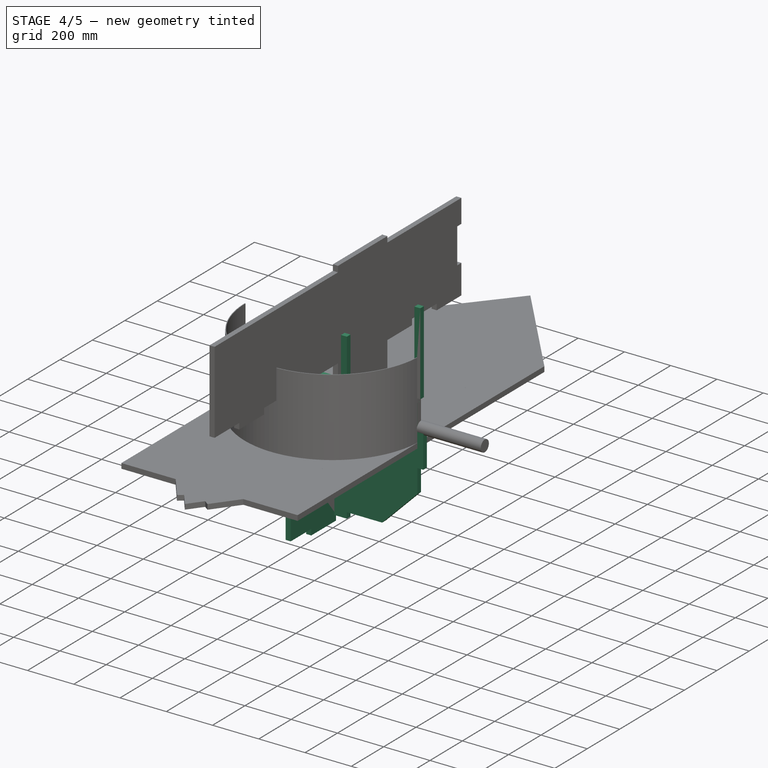
[diagram: stage 4 of 5 — iso view after this stage's code; geometry added in this stage tinted green]
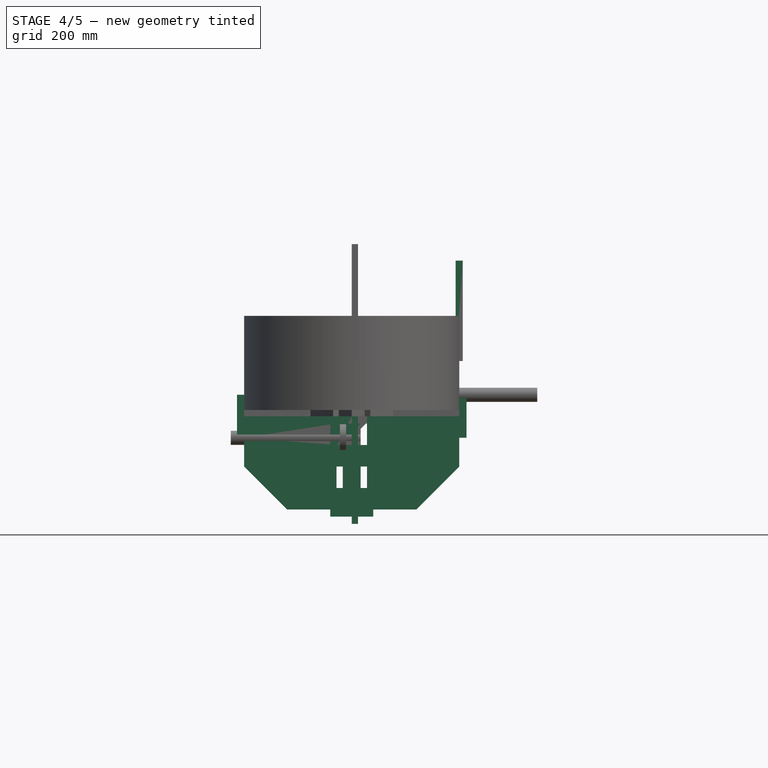
[diagram: stage 4 of 5 — front view after this stage's code; geometry added in this stage tinted green]
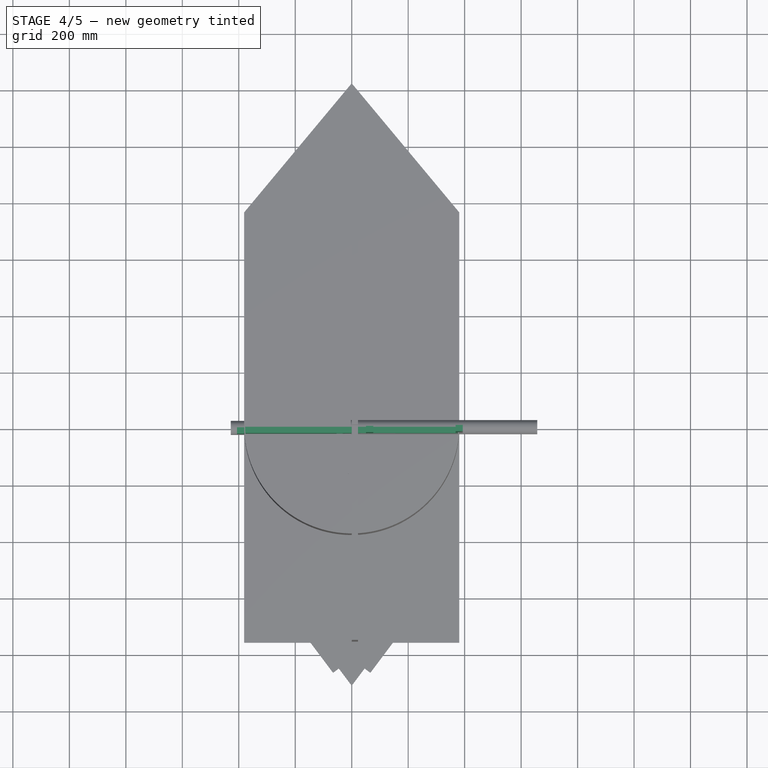
[diagram: stage 4 of 5 — top view after this stage's code; geometry added in this stage tinted green]
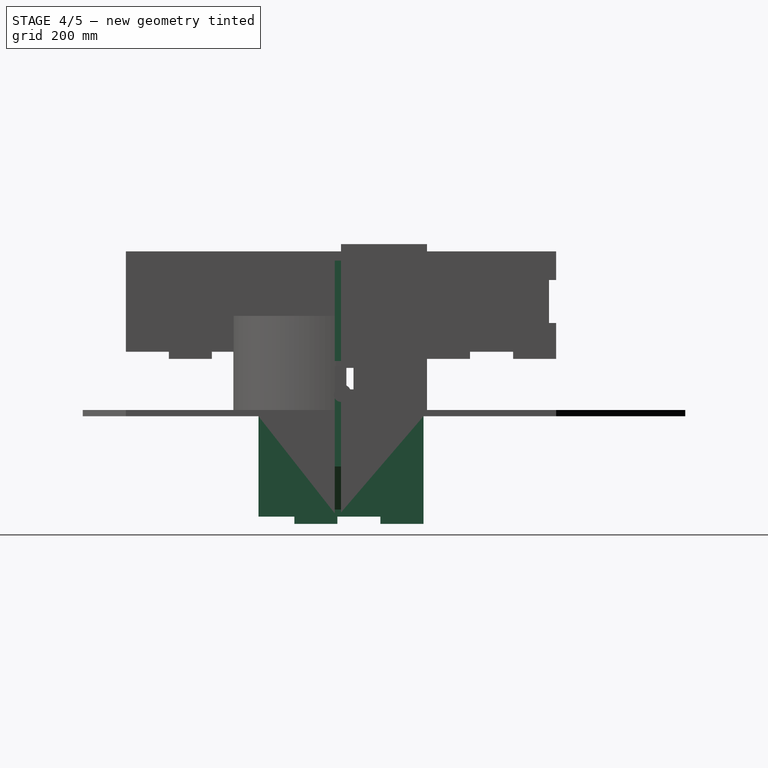
[diagram: stage 4 of 5 — right view after this stage's code; geometry added in this stage tinted green]
FEATURE [PartDesign::Plane] DatumPlane
  Length = 60
  MapMode = 5
  Placement = pos=(0,-22.225,-4.9e-15) rot=(1,0,0;1.5708rad)
  ResizeMode = 0
  Support = -> [Pad004]
  Width = 60
FEATURE [PartDesign::Body] Body004  label="front"
  Group = -> [Sketch004,Pad004,DatumPlane]
  Origin = -> Origin004
  Placement = pos=(154.458,-891.452,5.55391) rot=(0.163564,-0.317437,0.934067;4.01062rad)
  Tip = -> Pad004
FEATURE [Sketcher::SketchObject] Sketch006
  FullyConstrained = true
  MapMode = 5
  Placement = pos=(0,0,0) rot=(0.57735,0.57735,0.57735;2.0944rad)
  Support = -> [YZ_Plane006]
  sketch-geometry (10):
    g0: LineSegment StartX=-292.1 StartY=-355.6 StartZ=0 EndX=-165.1 EndY=-355.6 EndZ=0
    g1: LineSegment StartX=-165.1 StartY=-355.6 StartZ=0 EndX=-165.1 EndY=-381 EndZ=0
    g2: LineSegment StartX=-165.1 StartY=-381 StartZ=0 EndX=-12.7 EndY=-381 EndZ=0
    g3: LineSegment StartX=-12.7 StartY=-381 StartZ=0 EndX=-12.7 EndY=-355.6 EndZ=0
    g4: LineSegment StartX=-12.7 StartY=-355.6 StartZ=0 EndX=139.7 EndY=-355.6 EndZ=0
    g5: LineSegment StartX=139.7 StartY=-355.6 StartZ=0 EndX=139.7 EndY=-381 EndZ=0
    g6: LineSegment StartX=139.7 StartY=-381 StartZ=0 EndX=292.1 EndY=-381 EndZ=0
    g7: LineSegment StartX=292.1 StartY=-381 StartZ=0 EndX=292.1 EndY=0 EndZ=0
    g8: LineSegment StartX=292.1 StartY=0 StartZ=0 EndX=-292.1 EndY=0 EndZ=0
    g9: LineSegment StartX=-292.1 StartY=0 StartZ=0 EndX=-292.1 EndY=-355.6 EndZ=0
  constraints (29):
    c: Horizontal(g0)
    c: Coincident(g0,g1)
    c: Coincident(g1,g2)
    c: Horizontal(g2)
    c: Coincident(g2,g3)
    c: Coincident(g3,g4)
    c: Horizontal(g4)
    c: Coincident(g4,g5)
    c: Vertical(g5)
    c: Coincident(g5,g6)
    c: Horizontal(g6)
    c: Coincident(g6,g7)
    c: Vertical(g7)
    c: Coincident(g7,g8)
    c: Coincident(g8,g9)
    c: Coincident(g9,g0)
    c: Vertical(g9)
    c: Equal(g1,g3)
    c: Equal(g3,g5)
    c: Vertical(g3)
    c: Equal(g2,g4)
    c: Equal(g4,g6)
    c: DistanceX(g6,g6) = 152.4
    c: Vertical(g1)
    c: DistanceX(g0,g0) = 127
    c: DistanceY(g3,g3) = 25.4
    c: DistanceY(g9,g9) = 355.6
    c: Symmetric(g8,g7,g-2)
    c: DistanceY(g7,g-1) = 0
FEATURE [PartDesign::Pad] Pad006
  Direction = (1,-2e-16,3e-16)
  Length = 22.225
  Length2 = 10
  Placement = pos=(0,0,0) rot=(0.57735,0.57735,0.57735;2.0944rad)
  Profile = -> Sketch006
  ReferenceAxis = -> Sketch006 [N_Axis]
  Type = 0
FEATURE [PartDesign::Body] Body006  label="front2"
  Group = -> [Sketch006,Pad006]
  Origin = -> Origin006
  Placement = pos=(214.728,-990.453,549.899) rot=(-0.02542,0.004557,-0.999666;0.650781rad)
  Tip = -> Pad006
FEATURE [Sketcher::SketchObject] Sketch007
  FullyConstrained = true
  MapMode = 5
  Placement = pos=(0,0,0) rot=(1,0,0;1.5708rad)
  Support = -> [XZ_Plane007]
  sketch-geometry (8):
    g0: LineSegment StartX=-76.2 StartY=-152.4 StartZ=0 EndX=-76.2 EndY=0 EndZ=0
    g1: LineSegment StartX=-76.2 StartY=0 StartZ=0 EndX=0 EndY=0 EndZ=0
    g2: LineSegment StartX=0 StartY=0 StartZ=0 EndX=50.8 EndY=50.8 EndZ=0
    g3: LineSegment StartX=50.8 StartY=50.8 StartZ=0 EndX=50.8 EndY=355.6 EndZ=0
    g4: LineSegment StartX=50.8 StartY=355.6 StartZ=0 EndX=76.2 EndY=355.6 EndZ=0
    g5: LineSegment StartX=76.2 StartY=355.6 StartZ=0 EndX=76.2 EndY=0 EndZ=0
    g6: LineSegment StartX=76.2 StartY=0 StartZ=0 EndX=-76.2 EndY=-152.4 EndZ=0
    g7: LineSegment StartX=0 StartY=0 StartZ=0 EndX=76.2 EndY=0 EndZ=0
  constraints (22):
    c: Vertical(g0)
    c: Coincident(g0,g1)
    c: Horizontal(g1)
    c: Coincident(g1,g2)
    c: Coincident(g2,g3)
    c: Vertical(g3)
    c: Coincident(g3,g4)
    c: Horizontal(g4)
    c: Coincident(g4,g5)
    c: Vertical(g5)
    c: Coincident(g5,g6)
    c: Coincident(g6,g0)
    c: Coincident(g7,g1)
    c: Coincident(g7,g5)
    c: Horizontal(g7)
    c: DistanceY(g0,g0) = 152.4
    c: Angle(g7,g2) = 0.785398
    c: Angle(g6,g0) = 0.785398
    c: DistanceX(g4,g4) = 25.4
    c: DistanceX(g7,g7) = 76.2
    c: DistanceY(g5,g5) = 355.6
    c: Coincident(g1,g-1)
FEATURE [PartDesign::Pad] Pad007
  Direction = (0,-1,-2e-16)
  Length = 22.225
  Length2 = 10
  Placement = pos=(0,0,0) rot=(1,0,0;1.5708rad)
  Profile = -> Sketch007
  ReferenceAxis = -> Sketch007 [N_Axis]
  Type = 0
FEATURE [Sketcher::SketchObject] Sketch008
  FullyConstrained = true
  MapMode = 5
  Placement = pos=(0,0,0) rot=(1,0,0;1.5708rad)
  Support = -> [XZ_Plane007]
FEATURE [PartDesign::Body] Body007  label="Rib2"
  Group = -> [Sketch007,Pad007,Sketch008]
  Origin = -> Origin007
  Placement = pos=(306,21,172) rot=(0,0,1;0rad)
  Tip = -> Pad007
FEATURE [Sketcher::SketchObject] Sketch009
  FullyConstrained = false
  MapMode = 5
  Placement = pos=(0,0,0) rot=(1,0,0;1.5708rad)
  Support = -> [XZ_Plane008]
  sketch-geometry (4):
    g0: LineSegment StartX=368.059 StartY=551.311 StartZ=0 EndX=393.459 EndY=551.311 EndZ=0
    g1: LineSegment StartX=393.459 StartY=551.311 StartZ=0 EndX=393.459 EndY=195.711 EndZ=0
    g2: LineSegment StartX=393.459 StartY=195.711 StartZ=0 EndX=368.059 EndY=195.711 EndZ=0
    g3: LineSegment StartX=368.059 StartY=195.711 StartZ=0 EndX=368.059 EndY=551.311 EndZ=0
  constraints (10):
    c: Coincident(g0,g1)
    c: Coincident(g1,g2)
    c: Coincident(g2,g3)
    c: Coincident(g3,g0)
    c: Horizontal(g0)
    c: Horizontal(g2)
    c: Vertical(g1)
    c: Vertical(g3)
    c: DistanceY(g1,g1) = 355.6
    c: DistanceX(g0,g0) = 25.4
FEATURE [PartDesign::Pad] Pad008
  Direction = (0,-1,-2e-16)
  Length = 22.225
  Length2 = 10
  Placement = pos=(0,0,0) rot=(1,0,0;1.5708rad)
  Profile = -> Sketch009
  ReferenceAxis = -> Sketch009 [N_Axis]
  Type = 0
FEATURE [Sketcher::SketchObject] Sketch010
  FullyConstrained = true
  MapMode = 5
  Support = -> [XY_Plane008]
FEATURE [PartDesign::Body] Body008  label="rib2-internal"
  Group = -> [Sketch009,Pad008,Sketch010]
  Origin = -> Origin008
  Placement = pos=(0,0,-22) rot=(0,0,1;0rad)
  Tip = -> Pad008
FEATURE [Sketcher::SketchObject] Sketch011
  FullyConstrained = true
  MapMode = 5
  Placement = pos=(0,0,0) rot=(1,0,0;1.5708rad)
  Support = -> [XZ_Plane009]
  sketch-geometry (51):
    g0: LineSegment StartX=228.6 StartY=-330.2 StartZ=0 EndX=381 EndY=-177.8 EndZ=0
    g1: LineSegment StartX=381 StartY=177.8 StartZ=0 EndX=-381 EndY=177.8 EndZ=0
    g2: LineSegment StartX=-381 StartY=-177.8 StartZ=0 EndX=-228.6 EndY=-330.2 EndZ=0
    g3: LineSegment StartX=381 StartY=76.2 StartZ=0 EndX=406.4 EndY=76.2 EndZ=0
    g4: LineSegment StartX=406.4 StartY=76.2 StartZ=0 EndX=406.4 EndY=-76.2 EndZ=0
    g5: LineSegment StartX=406.4 StartY=-76.2 StartZ=0 EndX=381 EndY=-76.2 EndZ=0
    g6: LineSegment StartX=-381 StartY=76.2 StartZ=0 EndX=-406.4 EndY=76.2 EndZ=0
    g7: LineSegment StartX=-406.4 StartY=76.2 StartZ=0 EndX=-406.4 EndY=-76.2 EndZ=0
    g8: LineSegment StartX=-406.4 StartY=-76.2 StartZ=0 EndX=-381 EndY=-76.2 EndZ=0
    g9: LineSegment StartX=-381 StartY=177.8 StartZ=0 EndX=-381 EndY=76.2 EndZ=0
    g10: LineSegment StartX=-381 StartY=-76.2 StartZ=0 EndX=-381 EndY=-177.8 EndZ=0
    g11: LineSegment StartX=381 StartY=-76.2 StartZ=0 EndX=381 EndY=-177.8 EndZ=0
    g12: LineSegment StartX=381 StartY=177.8 StartZ=0 EndX=381 EndY=76.2 EndZ=0
    g13: LineSegment StartX=-76.2 StartY=-330.2 StartZ=0 EndX=-76.2 EndY=-355.6 EndZ=0
    g14: LineSegment StartX=-76.2 StartY=-355.6 StartZ=0 EndX=76.2 EndY=-355.6 EndZ=0
    g15: LineSegment StartX=76.2 StartY=-355.6 StartZ=0 EndX=76.2 EndY=-330.2 EndZ=0
    g16: LineSegment StartX=76.2 StartY=-330.2 StartZ=0 EndX=228.6 EndY=-330.2 EndZ=0
    g17: LineSegment StartX=-76.2 StartY=-330.2 StartZ=0 EndX=-228.6 EndY=-330.2 EndZ=0
    g18: LineSegment StartX=31.75 StartY=-177.8 StartZ=0 EndX=53.975 EndY=-177.8 EndZ=0
    g19: LineSegment StartX=53.975 StartY=-177.8 StartZ=0 EndX=53.975 EndY=-254 EndZ=0
    g20: LineSegment StartX=53.975 StartY=-254 StartZ=0 EndX=31.75 EndY=-254 EndZ=0
    g21: LineSegment StartX=31.75 StartY=-254 StartZ=0 EndX=31.75 EndY=-177.8 EndZ=0
    g22: LineSegment StartX=-53.975 StartY=-177.8 StartZ=0 EndX=-31.75 EndY=-177.8 EndZ=0
    g23: LineSegment StartX=-31.75 StartY=-177.8 StartZ=0 EndX=-31.75 EndY=-254 EndZ=0
    g24: LineSegment StartX=-31.75 StartY=-254 StartZ=0 EndX=-53.975 EndY=-254 EndZ=0
    g25: LineSegment StartX=-53.975 StartY=-254 StartZ=0 EndX=-53.975 EndY=-177.8 EndZ=0
    g26: LineSegment StartX=-53.975 StartY=-25.4 StartZ=0 EndX=-31.75 EndY=-25.4 EndZ=0
    g27: LineSegment StartX=-31.75 StartY=-25.4 StartZ=0 EndX=-31.75 EndY=-101.6 EndZ=0
    g28: LineSegment StartX=-31.75 StartY=-101.6 StartZ=0 EndX=-53.975 EndY=-101.6 EndZ=0
    g29: LineSegment StartX=-53.975 StartY=-101.6 StartZ=0 EndX=-53.975 EndY=-25.4 EndZ=0
    g30: LineSegment StartX=31.75 StartY=-25.4 StartZ=0 EndX=53.975 EndY=-25.4 EndZ=0
    g31: LineSegment StartX=53.975 StartY=-25.4 StartZ=0 EndX=53.975 EndY=-101.6 EndZ=0
    g32: LineSegment StartX=53.975 StartY=-101.6 StartZ=0 EndX=31.75 EndY=-101.6 EndZ=0
    g33: LineSegment StartX=31.75 StartY=-101.6 StartZ=0 EndX=31.75 EndY=-25.4 EndZ=0
    g34: LineSegment StartX=-53.975 StartY=127 StartZ=0 EndX=-31.75 EndY=127 EndZ=0
    g35: LineSegment StartX=-31.75 StartY=127 StartZ=0 EndX=-31.75 EndY=50.8 EndZ=0
    g36: LineSegment StartX=-31.75 StartY=50.8 StartZ=0 EndX=-53.975 EndY=50.8 EndZ=0
    g37: LineSegment StartX=-53.975 StartY=50.8 StartZ=0 EndX=-53.975 EndY=127 EndZ=0
    g38: LineSegment StartX=31.75 StartY=127 StartZ=0 EndX=53.975 EndY=127 EndZ=0
    g39: LineSegment StartX=53.975 StartY=127 StartZ=0 EndX=53.975 EndY=50.8 EndZ=0
    g40: LineSegment StartX=53.975 StartY=50.8 StartZ=0 EndX=31.75 EndY=50.8 EndZ=0
    g41: LineSegment StartX=31.75 StartY=50.8 StartZ=0 EndX=31.75 EndY=127 EndZ=0
    g42: LineSegment StartX=-76.2 StartY=-330.2 StartZ=0 EndX=76.2 EndY=-330.2 EndZ=0
    g43: LineSegment StartX=31.75 StartY=-254 StartZ=0 EndX=31.75 EndY=-330.2 EndZ=0
    g44: LineSegment StartX=-31.75 StartY=-254 StartZ=0 EndX=-31.75 EndY=-330.2 EndZ=0
    g45: LineSegment StartX=-31.75 StartY=-177.8 StartZ=0 EndX=-31.75 EndY=-101.6 EndZ=0
    g46: LineSegment StartX=31.75 StartY=-101.6 StartZ=0 EndX=31.75 EndY=-177.8 EndZ=0
    g47: LineSegment StartX=-31.75 StartY=-25.4 StartZ=0 EndX=-31.75 EndY=50.8 EndZ=0
    g48: LineSegment StartX=31.75 StartY=50.8 StartZ=0 EndX=31.75 EndY=-25.4 EndZ=0
    g49: LineSegment StartX=-31.75 StartY=127 StartZ=0 EndX=-31.75 EndY=177.8 EndZ=0
    g50: LineSegment StartX=31.75 StartY=127 StartZ=0 EndX=31.75 EndY=177.8 EndZ=0
  constraints (146):
    c: DistanceY(g2,g1) = 355.6
    c: DistanceY(g0,g1) = 355.6
    c: DistanceX(g2,g0) = 457.2
    c: DistanceY(g2,g2) = 152.4
    c: Symmetric(g1,g1,g-2)
    c: Symmetric(g1,g0,g-1)
    c: Horizontal(g3)
    c: Coincident(g3,g4)
    c: Vertical(g4)
    c: Coincident(g4,g5)
    c: Coincident(g6,g7)
    c: Vertical(g7)
    c: Coincident(g7,g8)
    c: Horizontal(g8)
    c: Horizontal(g6)
    c: Coincident(g9,g1)
    c: Coincident(g9,g6)
    c: Vertical(g9)
    c: Coincident(g10,g8)
    c: Coincident(g10,g2)
    c: Vertical(g10)
    c: Coincident(g11,g5)
    c: Coincident(g11,g0)
    c: Vertical(g11)
    c: Coincident(g12,g1)
    c: Coincident(g12,g3)
    c: Vertical(g12)
    c: Horizontal(g5)
    c: DistanceY(g4,g4) = 152.4
    c: DistanceY(g7,g7) = 152.4
    c: DistanceX(g8,g8) = 25.4
    c: DistanceX(g5,g5) = 25.4
    c: Equal(g9,g10)
    c: Equal(g11,g12)
    c: Equal(g6,g8)
    c: Vertical(g13)
    c: Coincident(g13,g14)
    c: Horizontal(g14)
    c: Coincident(g14,g15)
    c: Vertical(g15)
    c: DistanceX(g14,g14) = 152.4
    c: Coincident(g16,g15)
    c: Coincident(g16,g0)
    c: Horizontal(g16)
    c: Coincident(g17,g13)
    c: Coincident(g17,g2)
    c: Horizontal(g17)
    c: Equal(g16,g17)
    c: Angle(g0,g16) = 2.35619
    c: Angle(g17,g2) = 2.35619
    c: Equal(g13,g15)
    c: DistanceY(g15,g15) = 25.4
    c: Coincident(g18,g19)
    c: Coincident(g19,g20)
    c: Coincident(g20,g21)
    c: Coincident(g21,g18)
    c: Horizontal(g18)
    c: Horizontal(g20)
    c: Vertical(g19)
    c: Vertical(g21)
    c: Coincident(g22,g23)
    c: Coincident(g23,g24)
    c: Coincident(g24,g25)
    c: Coincident(g25,g22)
    c: Horizontal(g22)
    c: Horizontal(g24)
    c: Vertical(g23)
    c: Vertical(g25)
    c: Coincident(g26,g27)
    c: Coincident(g27,g28)
    c: Coincident(g28,g29)
    c: Coincident(g29,g26)
    c: Horizontal(g26)
    c: Horizontal(g28)
    c: Vertical(g27)
    c: Vertical(g29)
    c: Coincident(g30,g31)
    c: Coincident(g31,g32)
    c: Coincident(g32,g33)
    c: Coincident(g33,g30)
    c: Horizontal(g30)
    c: Horizontal(g32)
    c: Vertical(g31)
    c: Vertical(g33)
    c: Coincident(g34,g35)
    c: Coincident(g35,g36)
    c: Coincident(g36,g37)
    c: Coincident(g37,g34)
    c: Horizontal(g34)
    c: Horizontal(g36)
    c: Vertical(g35)
    c: Vertical(g37)
    c: Coincident(g38,g39)
    c: Coincident(g39,g40)
    c: Coincident(g40,g41)
    c: Coincident(g41,g38)
    c: Horizontal(g38)
    c: Horizontal(g40)
    c: Vertical(g39)
    c: Vertical(g41)
    c: Coincident(g42,g13)
    c: Coincident(g42,g15)
    c: Coincident(g43,g20)
    c: PointOnObject(g43,g42)
    c: Vertical(g43)
    c: Coincident(g44,g23)
    c: PointOnObject(g44,g42)
    c: Vertical(g44)
    c: Coincident(g45,g22)
    c: Coincident(g45,g27)
    c: Coincident(g46,g32)
    c: Coincident(g46,g18)
    c: Coincident(g47,g26)
    c: Coincident(g47,g35)
    c: Coincident(g48,g40)
    c: Coincident(g48,g30)
    c: Coincident(g49,g34)
    c: PointOnObject(g49,g1)
    c: Vertical(g49)
    c: Coincident(g50,g38)
    c: PointOnObject(g50,g1)
    c: Vertical(g50)
    c: Vertical(g48)
    c: Vertical(g47)
    c: Vertical(g45)
    c: Vertical(g46)
    c: Equal(g18,g32)
    c: Equal(g30,g40)
    c: Equal(g36,g40)
    c: Equal(g36,g26)
    c: Equal(g28,g22)
    c: Equal(g43,g44)
    c: Equal(g44,g45)
    c: Equal(g45,g46)
    c: Equal(g46,g48)
    c: Equal(g48,g47)
    c: Equal(g35,g41)
    c: Equal(g41,g33)
    c: Equal(g33,g27)
    c: Equal(g23,g27)
    c: Equal(g23,g21)
    c: DistanceY(g43,g43) = 76.2
    c: DistanceY(g19,g19) = 76.2
    c: DistanceX(g-1,g30) = 31.75
    c: DistanceX(g26,g-1) = 31.75
    c: DistanceX(g38,g38) = 22.225
FEATURE [PartDesign::Pad] Pad009
  Direction = (0,-1,-2e-16)
  Length = 22.225
  Length2 = 10
  Placement = pos=(0,0,0) rot=(1,0,0;1.5708rad)
  Profile = -> Sketch011
  ReferenceAxis = -> Sketch011 [N_Axis]
  Type = 0
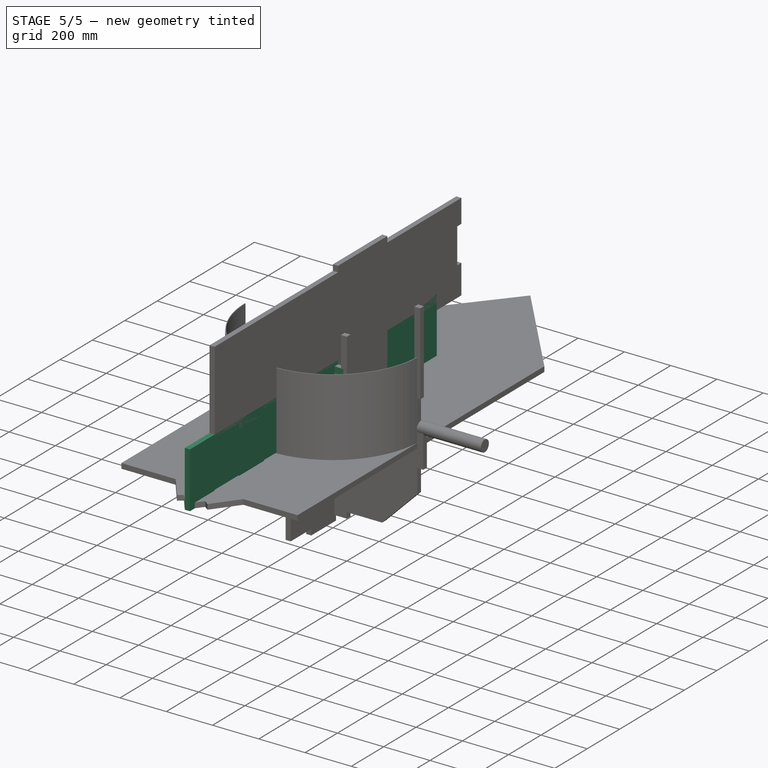
[diagram: stage 5 of 5 — iso view after this stage's code; geometry added in this stage tinted green]
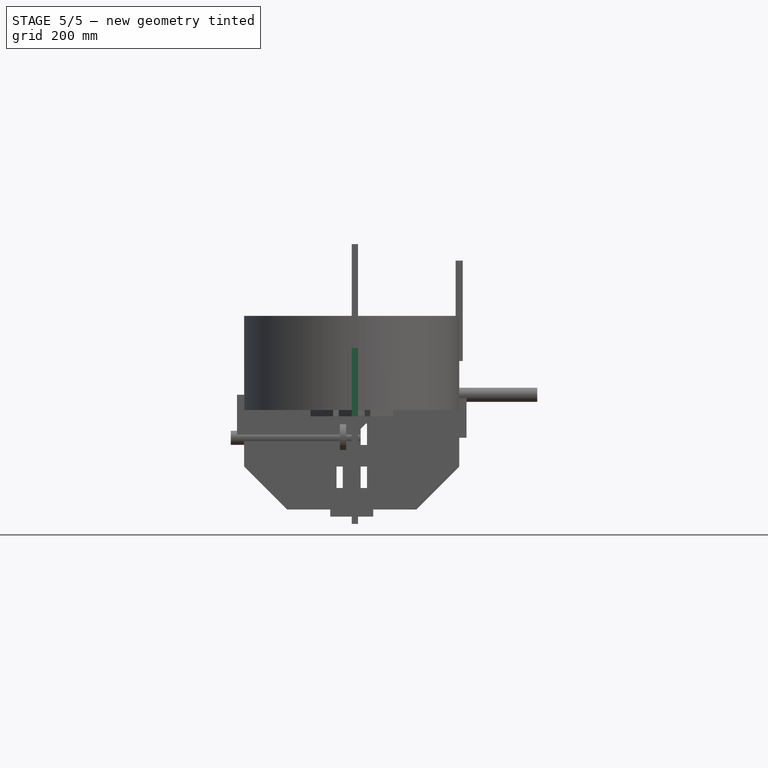
[diagram: stage 5 of 5 — front view after this stage's code; geometry added in this stage tinted green]
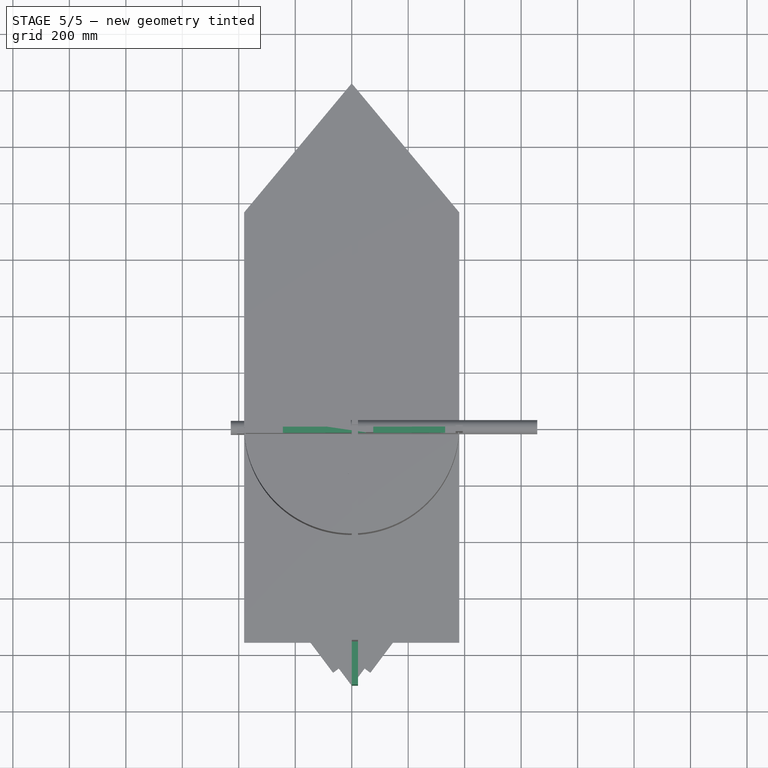
[diagram: stage 5 of 5 — top view after this stage's code; geometry added in this stage tinted green]
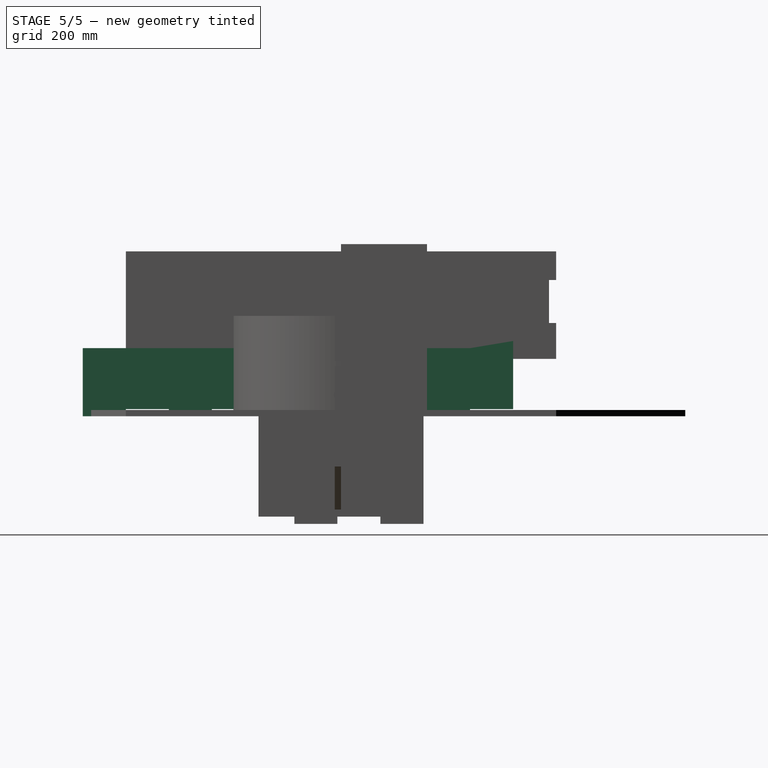
[diagram: stage 5 of 5 — right view after this stage's code; geometry added in this stage tinted green]
FEATURE [Sketcher::SketchObject] Sketch001
  FullyConstrained = true
  MapMode = 5
  Placement = pos=(0,0,0) rot=(1,0,0;1.5708rad)
  Support = -> [XZ_Plane001]
  sketch-geometry (6):
    g0: LineSegment StartX=0 StartY=0 StartZ=0 EndX=228.6 EndY=0 EndZ=0
    g1: LineSegment StartX=228.6 StartY=0 StartZ=0 EndX=381 EndY=152.4 EndZ=0
    g2: LineSegment StartX=381 StartY=152.4 StartZ=0 EndX=228.6 EndY=152.4 EndZ=0
    g3: LineSegment StartX=228.6 StartY=152.4 StartZ=0 EndX=228.6 EndY=127 EndZ=0
    g4: LineSegment StartX=228.6 StartY=127 StartZ=0 EndX=0 EndY=127 EndZ=0
    g5: LineSegment StartX=0 StartY=127 StartZ=0 EndX=0 EndY=0 EndZ=0
  constraints (17):
    c: Coincident(g-1,g0)
    c: Horizontal(g0)
    c: Coincident(g0,g1)
    c: Coincident(g1,g2)
    c: Horizontal(g2)
    c: Coincident(g2,g3)
    c: Vertical(g3)
    c: Coincident(g3,g4)
    c: PointOnObject(g4,g-2)
    c: Horizontal(g4)
    c: Coincident(g4,g5)
    c: Coincident(g5,g0)
    c: DistanceY(g5,g5) = 127
    c: DistanceY(g3,g3) = 25.4
    c: Angle(g2,g1) = 0.785398
    c: DistanceX(g4,g1) = 381
    c: DistanceX(g2,g0) = 0
FEATURE [PartDesign::Pad] Pad001
  Direction = (0,-1,-2e-16)
  Length = 22.225
  Length2 = 10
  Placement = pos=(0,0,0) rot=(1,0,0;1.5708rad)
  Profile = -> Sketch001
  ReferenceAxis = -> Sketch001 [N_Axis]
  Type = 0
FEATURE [PartDesign::Body] Body001  label="Rib"
  Group = -> [Sketch001,Pad001]
  Origin = -> Origin001
  Placement = pos=(0,0,20) rot=(0,0,1;0rad)
  Tip = -> Pad001
FEATURE [Sketcher::SketchObject] Sketch002
  FullyConstrained = true
  MapMode = 5
  Placement = pos=(0,0,0) rot=(0.57735,0.57735,0.57735;2.0944rad)
  Support = -> [YZ_Plane002]
  sketch-geometry (4):
    g0: LineSegment StartX=0 StartY=127 StartZ=0 EndX=231.775 EndY=127 EndZ=0
    g1: LineSegment StartX=231.775 StartY=127 StartZ=0 EndX=231.775 EndY=0 EndZ=0
    g2: LineSegment StartX=231.775 StartY=0 StartZ=0 EndX=0 EndY=0 EndZ=0
    g3: LineSegment StartX=0 StartY=0 StartZ=0 EndX=0 EndY=127 EndZ=0
  constraints (11):
    c: Coincident(g0,g1)
    c: Coincident(g1,g2)
    c: Coincident(g2,g3)
    c: Coincident(g3,g0)
    c: Horizontal(g0)
    c: Horizontal(g2)
    c: Vertical(g1)
    c: Vertical(g3)
    c: DistanceY(g1,g1) = 127
    c: DistanceX(g0,g0) = 231.775
    c: Coincident(g-1,g2)
FEATURE [PartDesign::Pad] Pad002
  Direction = (1,-2e-16,3e-16)
  Length = 22.225
  Length2 = 10
  Placement = pos=(0,0,0) rot=(0.57735,0.57735,0.57735;2.0944rad)
  Profile = -> Sketch002
  ReferenceAxis = -> Sketch002 [N_Axis]
  Type = 0
FEATURE [PartDesign::Body] Body002  label="Vertabrae"
  Group = -> [Sketch002,Pad002]
  Origin = -> Origin002
  Placement = pos=(-13,0,23) rot=(0,0,1;0rad)
  Tip = -> Pad002
FEATURE [Sketcher::SketchObject] Sketch003
  FullyConstrained = true
  MapMode = 5
  Placement = pos=(0,0,0) rot=(0.57735,0.57735,0.57735;2.0944rad)
  Support = -> [YZ_Plane003]
  sketch-geometry (40):
    g0: LineSegment StartX=-914.4 StartY=0 StartZ=0 EndX=-762 EndY=0 EndZ=0
    g1: LineSegment StartX=-762 StartY=0 StartZ=0 EndX=-762 EndY=25.4 EndZ=0
    g2: LineSegment StartX=-762 StartY=25.4 StartZ=0 EndX=-609.6 EndY=25.4 EndZ=0
    g3: LineSegment StartX=-609.6 StartY=25.4 StartZ=0 EndX=-609.6 EndY=0 EndZ=0
    g4: LineSegment StartX=-609.6 StartY=-1.2e-15 StartZ=0 EndX=-457.2 EndY=-1.2e-15 EndZ=0
    g5: LineSegment StartX=-457.2 StartY=-1.2e-15 StartZ=0 EndX=-457.2 EndY=25.4 EndZ=0
    g6: LineSegment StartX=-457.2 StartY=25.4 StartZ=0 EndX=-304.8 EndY=25.4 EndZ=0
    g7: LineSegment StartX=-304.8 StartY=25.4 StartZ=0 EndX=-304.8 EndY=0 EndZ=0
    g8: LineSegment StartX=-304.8 StartY=2e-16 StartZ=0 EndX=-152.4 EndY=2e-16 EndZ=0
    g9: LineSegment StartX=-152.4 StartY=2e-16 StartZ=0 EndX=-152.4 EndY=25.4 EndZ=0
    g10: LineSegment StartX=-152.4 StartY=25.4 StartZ=0 EndX=0 EndY=25.4 EndZ=0
    g11: LineSegment StartX=0 StartY=25.4 StartZ=0 EndX=0 EndY=0 EndZ=0
    g12: LineSegment StartX=0 StartY=0 StartZ=0 EndX=152.4 EndY=0 EndZ=0
    g13: LineSegment StartX=152.4 StartY=0 StartZ=0 EndX=152.4 EndY=25.4 EndZ=0
    g14: LineSegment StartX=152.4 StartY=25.4 StartZ=0 EndX=304.8 EndY=25.4 EndZ=0
    g15: LineSegment StartX=304.8 StartY=25.4 StartZ=0 EndX=304.8 EndY=0 EndZ=0
    g16: LineSegment StartX=304.8 StartY=-1.1e-15 StartZ=0 EndX=457.2 EndY=-1.1e-15 EndZ=0
    g17: LineSegment StartX=457.2 StartY=-1.1e-15 StartZ=0 EndX=457.2 EndY=25.4 EndZ=0
    g18: LineSegment StartX=457.2 StartY=25.4 StartZ=0 EndX=609.6 EndY=25.4 EndZ=0
    g19: LineSegment StartX=609.6 StartY=266.7 StartZ=0 EndX=457.2 EndY=266.7 EndZ=0
    g20: LineSegment StartX=457.2 StartY=266.7 StartZ=0 EndX=457.2 EndY=241.3 EndZ=0
    g21: LineSegment StartX=457.2 StartY=241.3 StartZ=0 EndX=304.8 EndY=241.3 EndZ=0
    g22: LineSegment StartX=304.8 StartY=241.3 StartZ=0 EndX=304.8 EndY=266.7 EndZ=0
    g23: LineSegment StartX=304.8 StartY=266.7 StartZ=0 EndX=152.4 EndY=266.7 EndZ=0
    g24: LineSegment StartX=152.4 StartY=266.7 StartZ=0 EndX=152.4 EndY=241.3 EndZ=0
    g25: LineSegment StartX=152.4 StartY=241.3 StartZ=0 EndX=0 EndY=241.3 EndZ=0
    g26: LineSegment StartX=0 StartY=241.3 StartZ=0 EndX=0 EndY=266.7 EndZ=0
    g27: LineSegment StartX=0 StartY=266.7 StartZ=0 EndX=-152.4 EndY=266.7 EndZ=0
    g28: LineSegment StartX=-152.4 StartY=266.7 StartZ=0 EndX=-152.4 EndY=241.3 EndZ=0
    g29: LineSegment StartX=-152.4 StartY=241.3 StartZ=0 EndX=-304.8 EndY=241.3 EndZ=0
    g30: LineSegment StartX=-304.8 StartY=241.3 StartZ=0 EndX=-304.8 EndY=266.7 EndZ=0
    g31: LineSegment StartX=-304.8 StartY=266.7 StartZ=0 EndX=-457.2 EndY=266.7 EndZ=0
    g32: LineSegment StartX=-457.2 StartY=266.7 StartZ=0 EndX=-457.2 EndY=241.3 EndZ=0
    g33: LineSegment StartX=-457.2 StartY=241.3 StartZ=0 EndX=-609.6 EndY=241.3 EndZ=0
    g34: LineSegment StartX=-609.6 StartY=241.3 StartZ=0 EndX=-609.6 EndY=266.7 EndZ=0
    g35: LineSegment StartX=-609.6 StartY=266.7 StartZ=0 EndX=-762 EndY=266.7 EndZ=0
    g36: LineSegment StartX=-762 StartY=266.7 StartZ=0 EndX=-762 EndY=241.3 EndZ=0
    g37: LineSegment StartX=-762 StartY=241.3 StartZ=0 EndX=-914.4 EndY=241.3 EndZ=0
    g38: LineSegment StartX=-914.4 StartY=241.3 StartZ=0 EndX=-914.4 EndY=0 EndZ=0
    g39: LineSegment StartX=609.6 StartY=266.7 StartZ=0 EndX=609.6 EndY=25.4 EndZ=0
  constraints (119):
    c: Horizontal(g0)
    c: Coincident(g0,g1)
    c: Vertical(g1)
    c: Coincident(g1,g2)
    c: Horizontal(g2)
    c: Coincident(g2,g3)
    c: Coincident(g3,g4)
    c: Horizontal(g4)
    c: Coincident(g4,g5)
    c: Coincident(g5,g6)
    c: Horizontal(g6)
    c: Coincident(g6,g7)
    c: Coincident(g7,g8)
    c: Coincident(g8,g9)
    c: Coincident(g9,g10)
    c: Horizontal(g10)
    c: Coincident(g10,g11)
    c: Coincident(g11,g12)
    c: Horizontal(g12)
    c: Coincident(g12,g13)
    c: Coincident(g13,g14)
    c: Horizontal(g14)
    c: Coincident(g14,g15)
    c: Coincident(g15,g16)
    c: Horizontal(g16)
    c: Coincident(g16,g17)
    c: Vertical(g17)
    c: Coincident(g17,g18)
    c: Horizontal(g18)
    c: Horizontal(g19)
    c: Coincident(g19,g20)
    c: Coincident(g20,g21)
    c: Horizontal(g21)
    c: Coincident(g21,g22)
    c: Vertical(g22)
    c: Coincident(g22,g23)
    c: Horizontal(g23)
    c: Coincident(g23,g24)
    c: Coincident(g24,g25)
    c: Horizontal(g25)
    c: Coincident(g25,g26)
    c: Coincident(g26,g27)
    c: Horizontal(g27)
    c: Coincident(g27,g28)
    c: Coincident(g28,g29)
    c: Horizontal(g29)
    c: Coincident(g29,g30)
    c: Coincident(g30,g31)
    c: Horizontal(g31)
    c: Coincident(g31,g32)
    c: Coincident(g32,g33)
    c: Horizontal(g33)
    c: Coincident(g33,g34)
    c: Coincident(g34,g35)
    c: Horizontal(g35)
    c: Coincident(g35,g36)
    c: Coincident(g36,g37)
    c: Horizontal(g37)
    c: Coincident(g38,g37)
    c: Coincident(g38,g0)
    c: Vertical(g38)
    c: Vertical(g36)
    c: Vertical(g3)
    c: Vertical(g34)
    c: Vertical(g32)
    c: Vertical(g5)
    c: Vertical(g7)
    c: Vertical(g30)
    c: Vertical(g28)
    c: Vertical(g9)
    c: Vertical(g11)
    c: Vertical(g26)
    c: Vertical(g24)
    c: Vertical(g13)
    c: Vertical(g15)
    c: Vertical(g20)
    c: Horizontal(g8)
    c: Equal(g20,g22)
    c: Equal(g22,g24)
    c: Equal(g24,g26)
    c: Equal(g26,g28)
    c: Equal(g28,g30)
    c: Equal(g30,g32)
    c: Equal(g32,g34)
    c: Equal(g36,g1)
    c: Equal(g1,g3)
    c: Equal(g3,g5)
    c: Equal(g7,g9)
    c: Equal(g11,g13)
    c: Equal(g13,g15)
    c: Equal(g15,g17)
    c: Equal(g0,g37)
    c: Equal(g37,g35)
    c: Equal(g35,g33)
    c: Equal(g33,g31)
    c: Equal(g31,g29)
    c: Equal(g29,g27)
    c: Equal(g25,g27)
    c: Equal(g25,g23)
    c: Equal(g23,g21)
    c: Equal(g21,g19)
    c: Equal(g18,g16)
    c: Equal(g16,g14)
    c: Equal(g14,g12)
    c: Equal(g12,g10)
    c: Equal(g10,g8)
    c: Equal(g8,g6)
    c: Equal(g6,g4)
    c: Equal(g34,g36)
    c: Equal(g5,g7)
    c: Equal(g11,g9)
    c: DistanceY(g38,g38) = 241.3
    c: DistanceY(g34,g34) = 25.4
    c: Coincident(g11,g-1)
    c: Coincident(g39,g19)
    c: Coincident(g39,g18)
    c: Vertical(g39)
    c: DistanceX(g10,g10) = 152.4
    c: Equal(g18,g19)
FEATURE [PartDesign::Pad] Pad003
  Direction = (1,-2e-16,3e-16)
  Length = 22.225
  Length2 = 10
  Placement = pos=(0,0,0) rot=(0.57735,0.57735,0.57735;2.0944rad)
  Profile = -> Sketch003
  ReferenceAxis = -> Sketch003 [N_Axis]
  Type = 0
FEATURE [PartDesign::Body] Body003  label="Side"
  Group = -> [Sketch003,Pad003]
  Origin = -> Origin003
  Placement = pos=(231.224,-149,-10.6066) rot=(0.382683,0,0.92388;3.14159rad)
  Tip = -> Pad003
FEATURE [Sketcher::SketchObject] Sketch004
  FullyConstrained = true
  MapMode = 5
  Placement = pos=(0,0,0) rot=(1,0,0;1.5708rad)
  Support = -> [XZ_Plane004]
  sketch-geometry (14):
    g0: LineSegment StartX=-244.044 StartY=199.366 StartZ=0 EndX=-152.4 EndY=-16.5344 EndZ=0
    g1: LineSegment StartX=-152.4 StartY=-16.5344 StartZ=0 EndX=0 EndY=-16.5344 EndZ=0
    g2: LineSegment StartX=0 StartY=-16.5344 StartZ=0 EndX=0 EndY=0 EndZ=0
    g3: LineSegment StartX=0 StartY=0 StartZ=0 EndX=152.4 EndY=0 EndZ=0
    g4: LineSegment StartX=152.4 StartY=0 StartZ=0 EndX=152.4 EndY=-16.5344 EndZ=0
    g5: LineSegment StartX=152.4 StartY=-16.5344 StartZ=0 EndX=228.6 EndY=-16.5344 EndZ=0
    g6: LineSegment StartX=228.6 StartY=-16.5344 StartZ=0 EndX=331.026 EndY=224.766 EndZ=0
    g7: LineSegment StartX=-244.044 StartY=199.366 StartZ=0 EndX=-91.6441 EndY=199.366 EndZ=0
    g8: LineSegment StartX=-91.6441 StartY=199.366 StartZ=0 EndX=-91.6441 EndY=224.766 EndZ=0
    g9: LineSegment StartX=-91.6441 StartY=224.766 StartZ=0 EndX=60.7559 EndY=224.766 EndZ=0
    g10: LineSegment StartX=60.7559 StartY=224.766 StartZ=0 EndX=60.7559 EndY=199.366 EndZ=0
    g11: LineSegment StartX=60.7559 StartY=199.366 StartZ=0 EndX=213.156 EndY=199.366 EndZ=0
    g12: LineSegment StartX=213.156 StartY=199.366 StartZ=0 EndX=213.156 EndY=224.766 EndZ=0
    g13: LineSegment StartX=213.156 StartY=224.766 StartZ=0 EndX=331.026 EndY=224.766 EndZ=0
  constraints (41):
    c: Coincident(g0,g1)
    c: Horizontal(g1)
    c: Coincident(g1,g2)
    c: Coincident(g2,g3)
    c: Horizontal(g3)
    c: Coincident(g3,g4)
    c: Coincident(g4,g5)
    c: Horizontal(g5)
    c: Coincident(g5,g6)
    c: Coincident(g0,g7)
    c: Horizontal(g7)
    c: Coincident(g7,g8)
    c: Vertical(g8)
    c: Coincident(g8,g9)
    c: Coincident(g9,g10)
    c: Vertical(g10)
    c: Coincident(g10,g11)
    c: Horizontal(g11)
    c: Horizontal(g9)
    c: Equal(g7,g9)
    c: Equal(g9,g11)
    c: Equal(g3,g1)
    c: Vertical(g4)
    c: Vertical(g2)
    c: Equal(g10,g8)
    c: Equal(g2,g4)
    c: Angle(g1,g0) = 1.97222
    c: DistanceY(g0,g7) = 215.9
    c: DistanceY(g10,g10) = 25.4
    c: DistanceX(g9,g9) = 152.4
    c: Angle(g6,g5) = 1.97222
    c: Coincident(g2,g-1)
    c: Equal(g1,g3)
    c: Equal(g1,g7)
    c: DistanceX(g5,g5) = 76.2
    c: Coincident(g11,g12)
    c: Vertical(g12)
    c: Coincident(g12,g13)
    c: Coincident(g13,g6)
    c: Horizontal(g13)
    c: Equal(g12,g10)
FEATURE [PartDesign::Pad] Pad004
  Direction = (0,-1,-2e-16)
  Length = 22.225
  Length2 = 10
  Placement = pos=(0,0,0) rot=(1,0,0;1.5708rad)
  Profile = -> Sketch004
  ReferenceAxis = -> Sketch004 [N_Axis]
  Type = 0
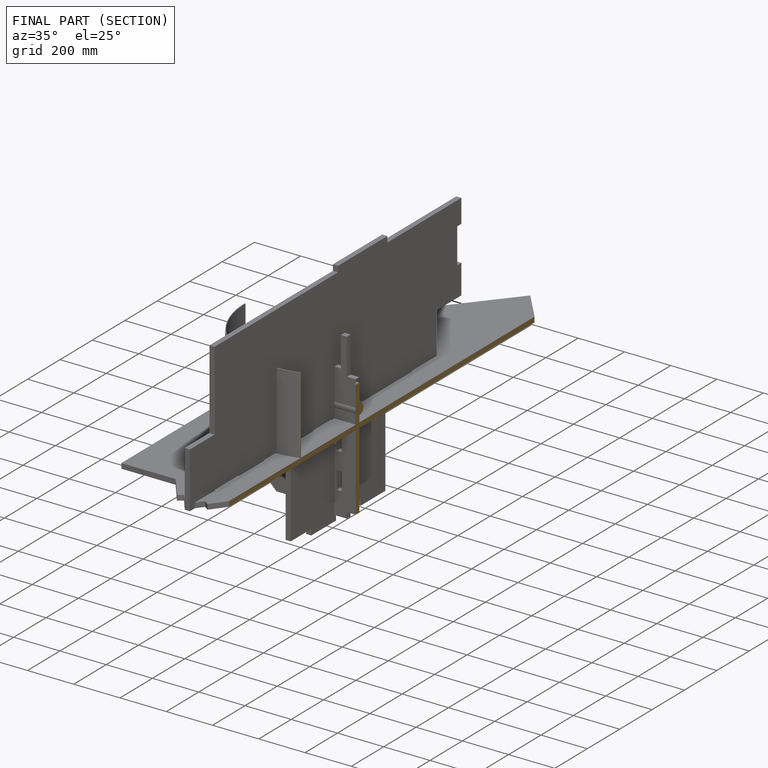
[diagram: finished part — half-section view (interior)]
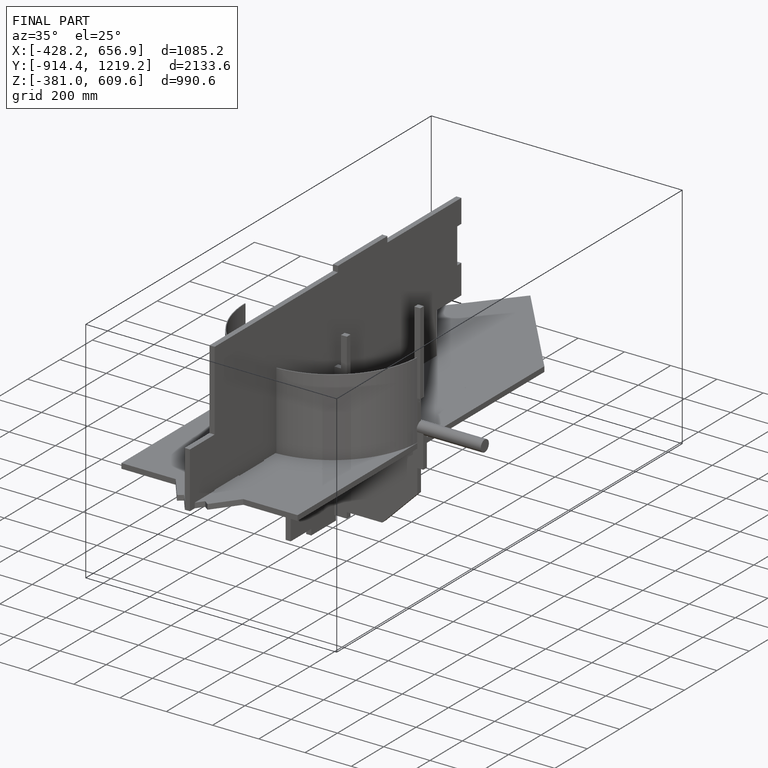
[diagram: finished part — iso view with bounding-box wireframe]
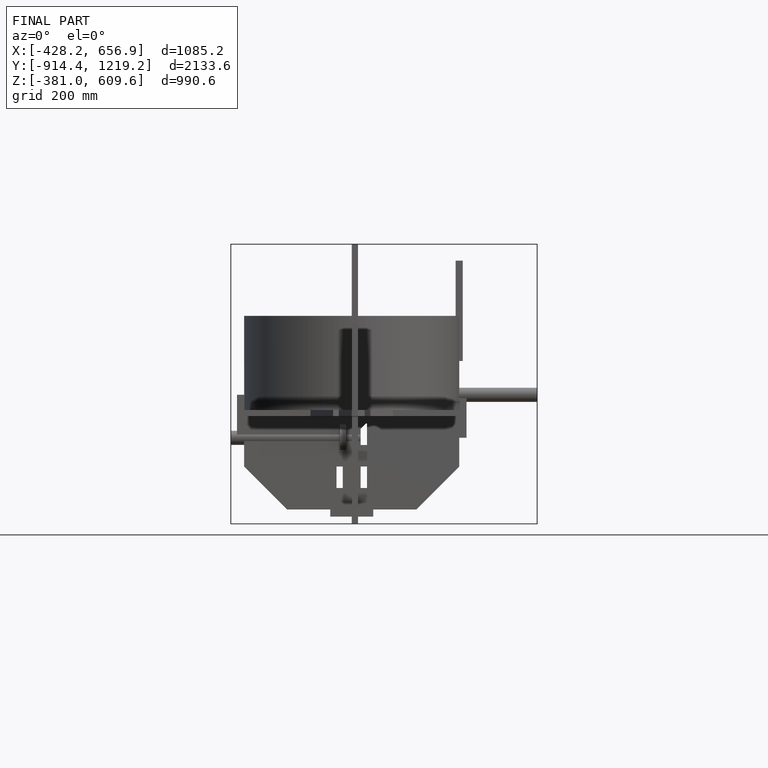
[diagram: finished part — front view with bounding-box wireframe]
